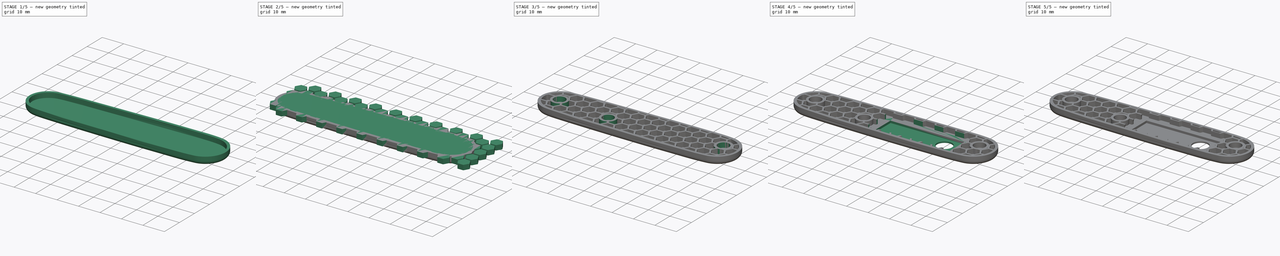
[diagram: build sequence overview — one tinted view per stage of 5, left to right]
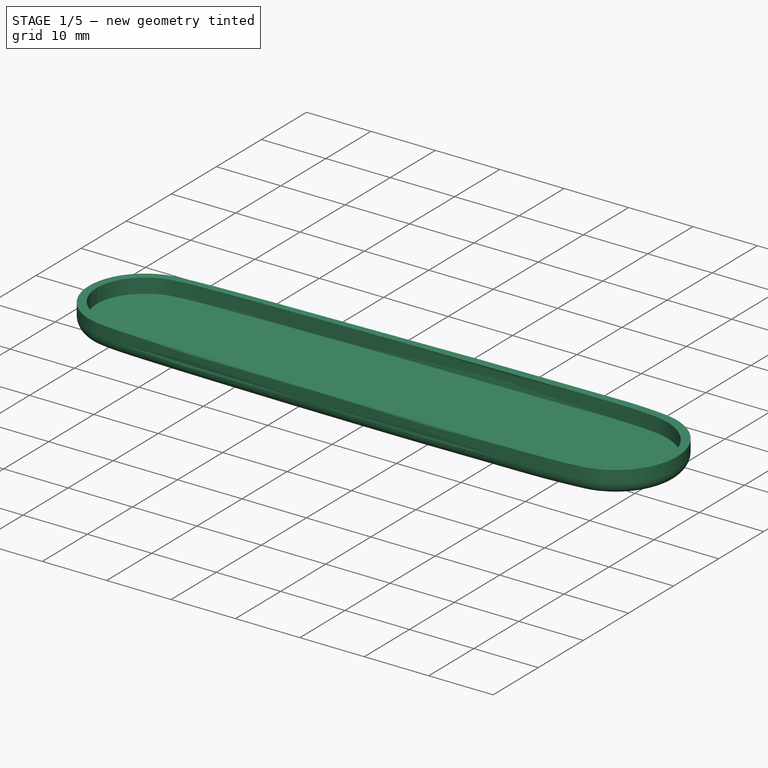
[diagram: stage 1 of 5 — iso view after this stage's code; geometry added in this stage tinted green]
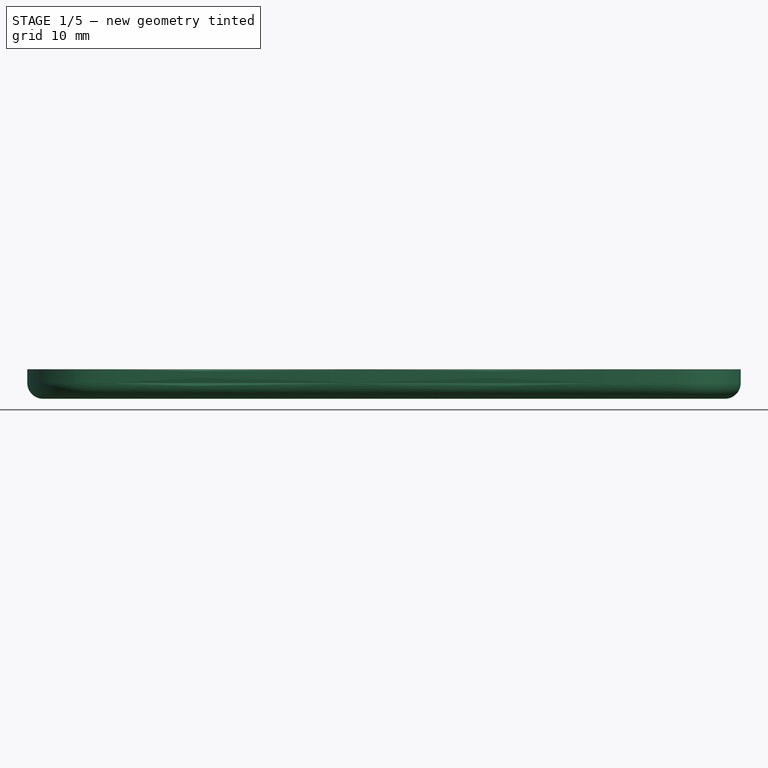
[diagram: stage 1 of 5 — front view after this stage's code; geometry added in this stage tinted green]
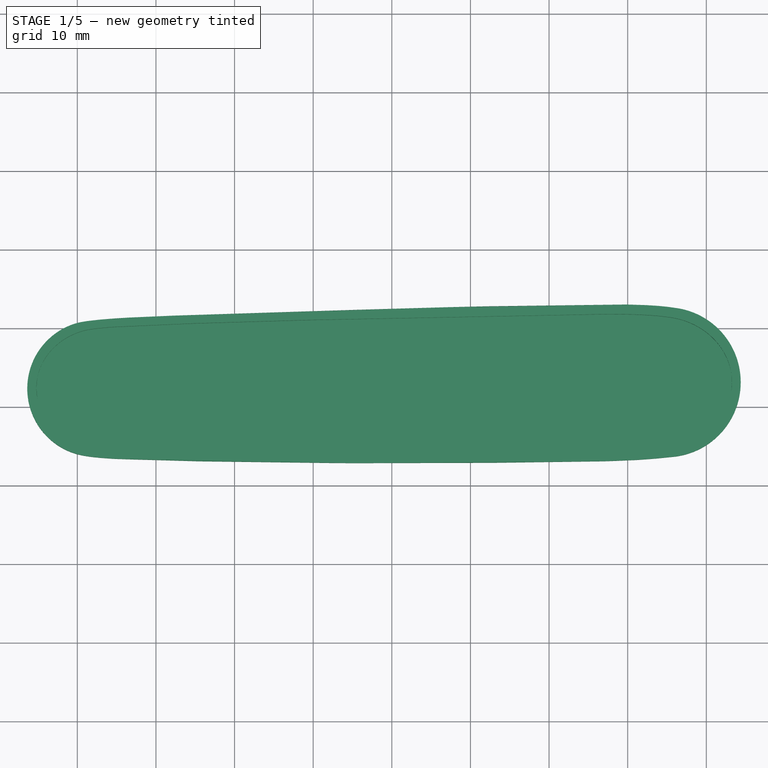
[diagram: stage 1 of 5 — top view after this stage's code; geometry added in this stage tinted green]
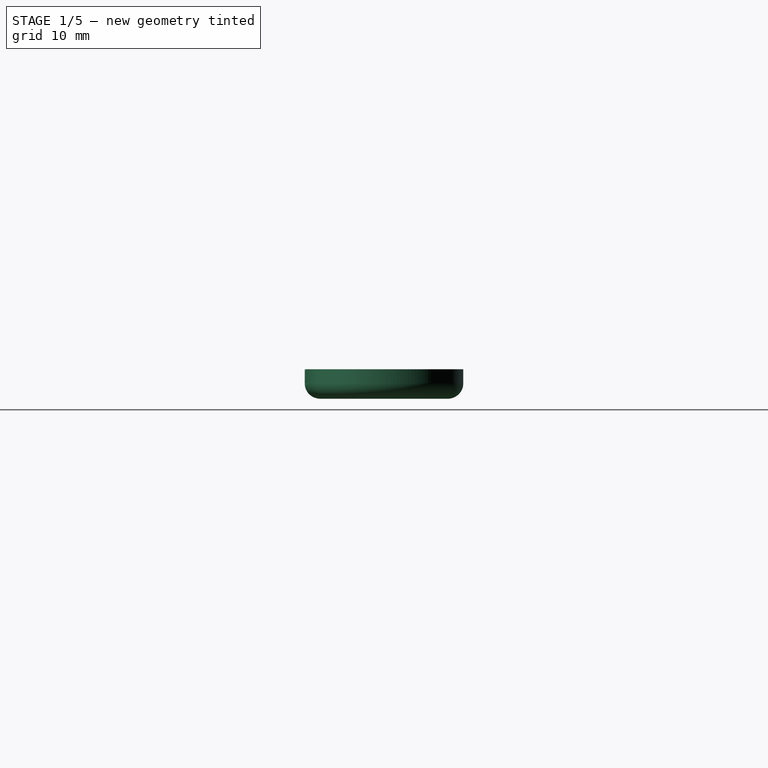
[diagram: stage 1 of 5 — right view after this stage's code; geometry added in this stage tinted green]
FCSTD DOCUMENT  (FreeCAD 0.19R24276 (Git))
Label: pocket_knife_scales
License: All rights reserved
LicenseURL: http://en.wikipedia.org/wiki/All_rights_reserved
objects: Sketcher::SketchObject×17, App::Part×16, Part::Feature×15, PartDesign::Pad×7, PartDesign::Body×6, Part::Part2DObjectPython×4, PartDesign::Pocket×4, PartDesign::FeaturePython×1, Part::Cut×1, PartDesign::Fillet×1, Part::MultiFuse×1, PartDesign::Chamfer×1
note: 71 computed .brp shape members not serialized (recipe doc carries the construction recipe); baked Part::Feature solids carry a one-line shape summary decoded from their .brp

FEATURE [Sketcher::SketchObject] Sketch  label="base"
  FullyConstrained = false
  MapMode = 5
  Support = -> [XY_Plane002]
  sketch-geometry (42):
    g0: ArcOfCircle CenterX=-37.7037 CenterY=-7.7 CenterZ=0 NormalX=0 NormalY=0 NormalZ=1 AngleXU=0 Radius=8.66 StartAngle=1.83917 EndAngle=4.44401
    g1: ArcOfCircle CenterX=34.847 CenterY=-6.89 CenterZ=0 NormalX=0 NormalY=0 NormalZ=1 AngleXU=0 Radius=9.53 StartAngle=4.83367 EndAngle=7.7327
    g2-g11: Circle x10 (B-spline internal-alignment scaffolding for g12; pole/knot coordinates omitted)
    g12: BSplineCurve PolesCount=10 KnotsCount=8 Degree=3 IsPeriodic=0
    g13-g20: GeomPoint x8 (B-spline internal-alignment scaffolding for g12; pole/knot coordinates omitted)
    g21-g31: Circle x11 (B-spline internal-alignment scaffolding for g32; pole/knot coordinates omitted)
    g32: BSplineCurve PolesCount=11 KnotsCount=9 Degree=3 IsPeriodic=0
    g33-g41: GeomPoint x9 (B-spline internal-alignment scaffolding for g32; pole/knot coordinates omitted)
  constraints (22):
    c: DistanceX(g0,g-1) = 40
    c: Vertical(g0,g0)
    c: DistanceY(g-1,g0) = 0.65
    c: DistanceY(g0,g0) = 16.7
    c: Radius(g0) = 8.66
    c: DistanceY(g1,g1) = 18.92
    c: DistanceX(g-1,g1) = 36
    c: Vertical(g1,g1)
    c: DistanceY(g-1,g1) = 2.57
    c: Coincident(g12,g1)
    c: Weight(g2) = 1
    c: Equal(g2, g3-g11) x9
    c: Coincident(g12,g0)
    c: InternalAlignment(g2-g11 -> g12) x10
    c: InternalAlignment(g13-g20 -> g12) x8
    c: Coincident(g32,g0)
    c: Weight(g21) = 1
    c: Equal(g21, g22-g31) x10
    c: Coincident(g32,g1)
    c: InternalAlignment(g21-g31 -> g32) x11
    c: InternalAlignment(g33-g41 -> g32) x9
    c: Radius(g1) = 9.53
FEATURE [PartDesign::Pad] Pad
  Direction = (1,1,1)
  Length = 3.75
  Length2 = 100
  Profile = -> Sketch
  Reversed = true
  Type = 0
FEATURE [PartDesign::Body] Body003  label="base_inner"
  Group = -> [Sketch011,Sketch012,Sketch013,Pad002]
  Origin = -> Origin020
  Tip = -> Pad002
FEATURE [PartDesign::Pocket] Pocket
  BaseFeature = -> Pad
  Length = 2.25
  Length2 = 100
  Profile = -> Sketch009
  Type = 0
FEATURE [PartDesign::Fillet] Fillet
  Base = -> Pocket [Face5]
  BaseFeature = -> Pocket
  Radius = 2
  SupportTransform = false
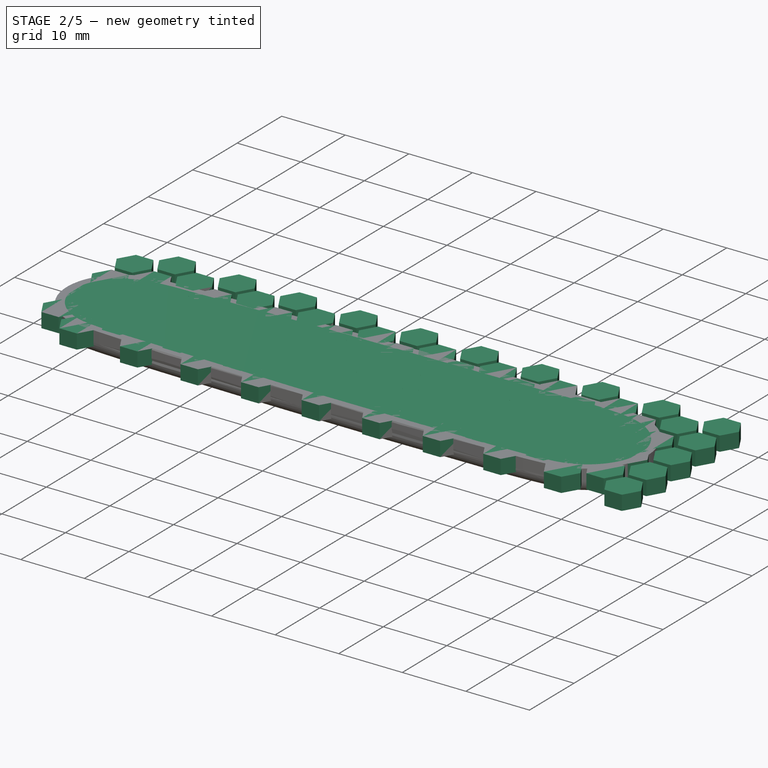
[diagram: stage 2 of 5 — iso view after this stage's code; geometry added in this stage tinted green]
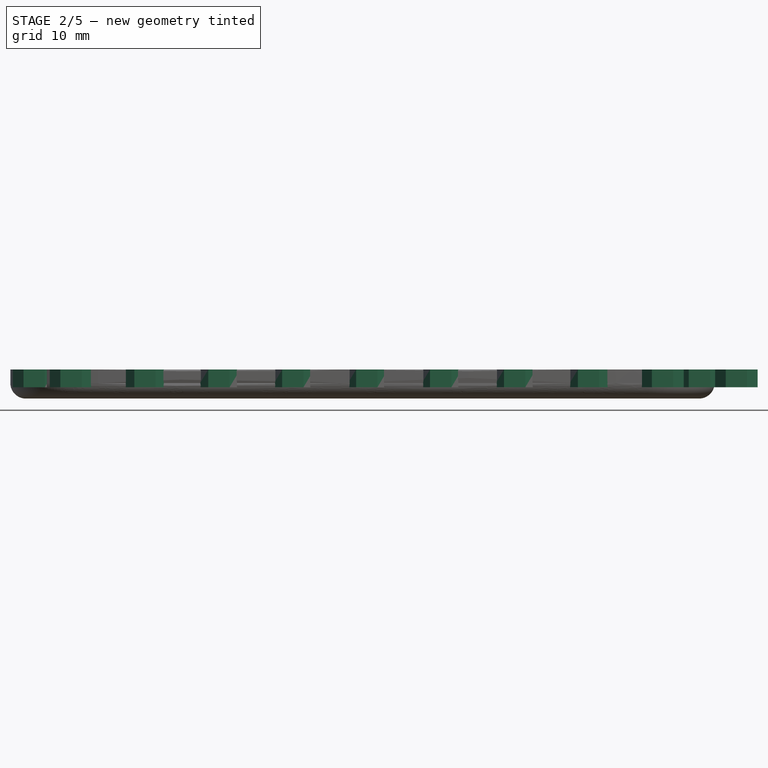
[diagram: stage 2 of 5 — front view after this stage's code; geometry added in this stage tinted green]
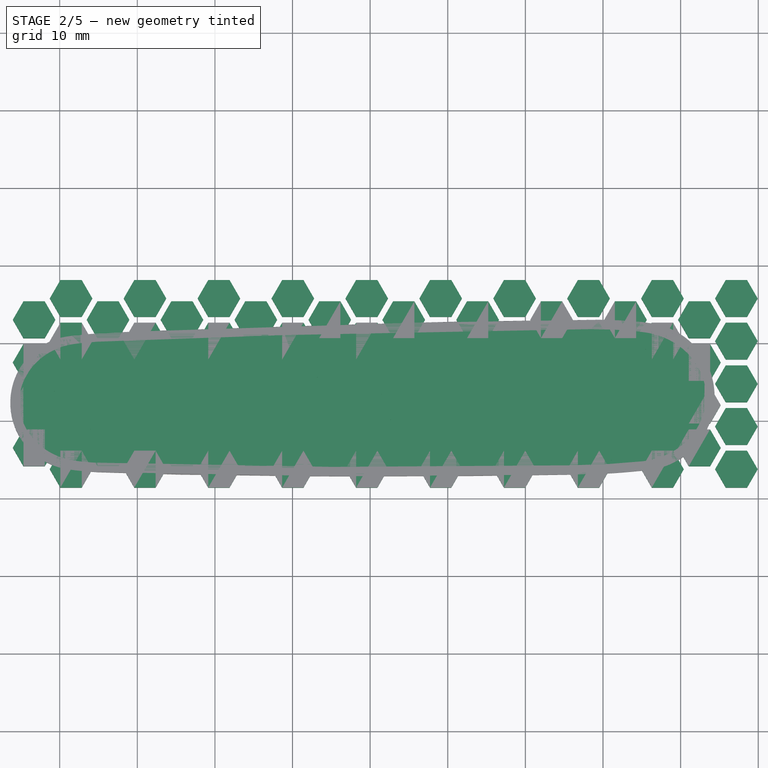
[diagram: stage 2 of 5 — top view after this stage's code; geometry added in this stage tinted green]
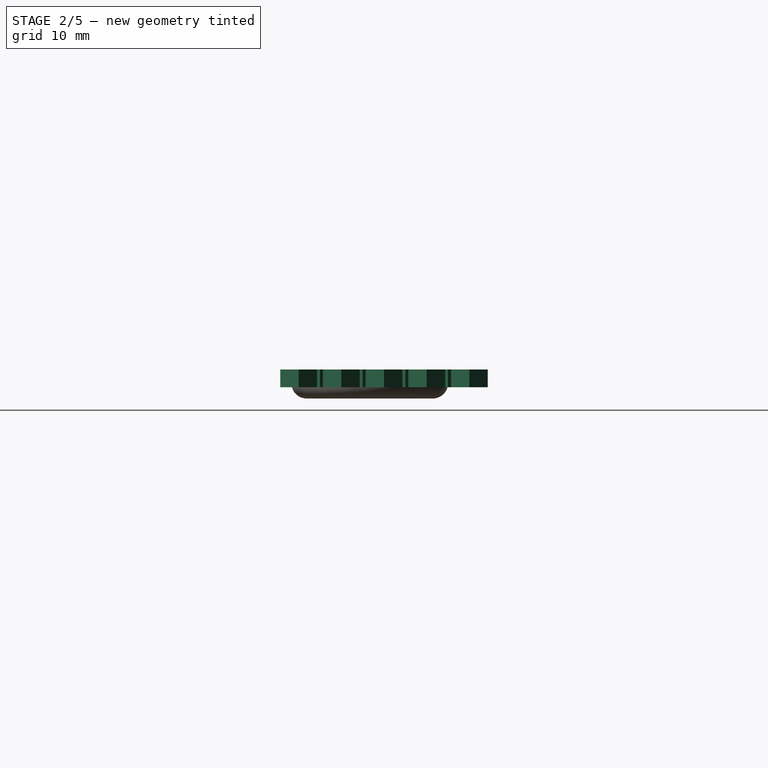
[diagram: stage 2 of 5 — right view after this stage's code; geometry added in this stage tinted green]
FEATURE [Sketcher::SketchObject] Sketch001  label="base_copy"
  FullyConstrained = false
  MapMode = 5
  Support = -> [XY_Plane019]
  sketch-geometry (42):
    g0: ArcOfCircle CenterX=-37.7037 CenterY=-7.7 CenterZ=0 NormalX=0 NormalY=0 NormalZ=1 AngleXU=0 Radius=8.66 StartAngle=1.83917 EndAngle=4.44401
    g1: ArcOfCircle CenterX=34.847 CenterY=-6.89 CenterZ=0 NormalX=0 NormalY=0 NormalZ=1 AngleXU=0 Radius=9.53 StartAngle=4.83367 EndAngle=7.7327
    g2-g11: Circle x10 (B-spline internal-alignment scaffolding for g12; pole/knot coordinates omitted)
    g12: BSplineCurve PolesCount=10 KnotsCount=8 Degree=3 IsPeriodic=0
    g13-g20: GeomPoint x8 (B-spline internal-alignment scaffolding for g12; pole/knot coordinates omitted)
    g21-g31: Circle x11 (B-spline internal-alignment scaffolding for g32; pole/knot coordinates omitted)
    g32: BSplineCurve PolesCount=11 KnotsCount=9 Degree=3 IsPeriodic=0
    g33-g41: GeomPoint x9 (B-spline internal-alignment scaffolding for g32; pole/knot coordinates omitted)
  constraints (22):
    c: DistanceX(g0,g-1) = 40
    c: Vertical(g0,g0)
    c: DistanceY(g-1,g0) = 0.65
    c: DistanceY(g0,g0) = 16.7
    c: Radius(g0) = 8.66
    c: DistanceY(g1,g1) = 18.92
    c: DistanceX(g-1,g1) = 36
    c: Vertical(g1,g1)
    c: DistanceY(g-1,g1) = 2.57
    c: Coincident(g12,g1)
    c: Weight(g2) = 1
    c: Equal(g2, g3-g11) x9
    c: Coincident(g12,g0)
    c: InternalAlignment(g2-g11 -> g12) x10
    c: InternalAlignment(g13-g20 -> g12) x8
    c: Coincident(g32,g0)
    c: Weight(g21) = 1
    c: Equal(g21, g22-g31) x10
    c: Coincident(g32,g1)
    c: InternalAlignment(g21-g31 -> g32) x11
    c: InternalAlignment(g33-g41 -> g32) x9
    c: Radius(g1) = 9.53
FEATURE [Sketcher::SketchObject] Sketch002  label="mounting_holes_s"
  FullyConstrained = false
  MapMode = 5
  Support = -> [XY_Plane022]
  sketch-geometry (6):
    g0: Circle CenterX=-38.6185 CenterY=-6.78904 CenterZ=0 NormalX=0 NormalY=0 NormalZ=1 AngleXU=0 Radius=2.7
    g1: Circle CenterX=-14.0609 CenterY=-9.54984 CenterZ=0 NormalX=0 NormalY=0 NormalZ=1 AngleXU=0 Radius=2.6
    g2: Circle CenterX=36.4096 CenterY=-4.90027 CenterZ=0 NormalX=0 NormalY=0 NormalZ=1 AngleXU=0 Radius=2.75
    g3: Circle CenterX=36.4096 CenterY=-4.90027 CenterZ=0 NormalX=0 NormalY=0 NormalZ=1 AngleXU=0 Radius=3.75
    g4: Circle CenterX=-14.0609 CenterY=-9.54984 CenterZ=0 NormalX=0 NormalY=0 NormalZ=1 AngleXU=0 Radius=3.6
    g5: Circle CenterX=-38.6185 CenterY=-6.78904 CenterZ=0 NormalX=0 NormalY=0 NormalZ=1 AngleXU=0 Radius=3.7
  constraints (9):
    c: Radius(g0) = 2.7
    c: Radius(g1) = 2.6
    c: Radius(g2) = 2.75
    c: Coincident(g3,g2)
    c: Radius(g3) = 3.75
    c: Coincident(g4,g1)
    c: Radius(g4) = 3.6
    c: Coincident(g5,g0)
    c: Radius(g5) = 3.7
FEATURE [Part::Part2DObjectPython] Clone2D  label="scaled_sketch"  # Draft 2D object (typed FeaturePython)
  Fuse = false
  Objects = -> [Sketch001]
  Placement = pos=(-0.0012919,-0.853768,0) rot=(0,0,1;0rad)
  Scale = (0.975,0.88,1)
FEATURE [Sketcher::SketchObject] Sketch005  label="hex"
  FullyConstrained = true
  MapMode = 5
  Support = -> [XY_Plane018]
  sketch-geometry (7):
    g0: LineSegment StartX=1.37121 StartY=2.375 StartZ=0 EndX=-1.37121 EndY=2.375 EndZ=0
    g1: LineSegment StartX=-1.37121 StartY=2.375 StartZ=0 EndX=-2.74241 EndY=0 EndZ=0
    g2: LineSegment StartX=-2.74241 StartY=0 StartZ=0 EndX=-1.37121 EndY=-2.375 EndZ=0
    g3: LineSegment StartX=-1.37121 StartY=-2.375 StartZ=0 EndX=1.37121 EndY=-2.375 EndZ=0
    g4: LineSegment StartX=1.37121 StartY=-2.375 StartZ=0 EndX=2.74241 EndY=0 EndZ=0
    g5: LineSegment StartX=2.74241 StartY=0 StartZ=0 EndX=1.37121 EndY=2.375 EndZ=0
    g6: Circle CenterX=0 CenterY=0 CenterZ=0 NormalX=0 NormalY=0 NormalZ=1 AngleXU=0 Radius=2.74241
  constraints (16):
    c: Coincident(g0,g1)
    c: Coincident(g1,g2)
    c: Coincident(g2,g3)
    c: Coincident(g3,g4)
    c: Coincident(g4,g5)
    c: Coincident(g5,g0)
    c: Equal(g0, g1-g5) x5
    c: PointOnObject(g0,g6)
    c: PointOnObject(g1,g6)
    c: PointOnObject(g2,g6)
    c: PointOnObject(g3,g6)
    c: PointOnObject(g4,g6)
    c: PointOnObject(g5,g6)
    c: Horizontal(g0)
    c: Coincident(g6,g-1)
    c: DistanceY(g3,g0) = 4.75
FEATURE [PartDesign::Pad] Pad001
  Direction = (1,1,1)
  Length = 2.3
  Length2 = 100
  Profile = -> Sketch005
  Reversed = true
  Type = 0
FEATURE [Part::Part2DObjectPython] Placment  label="Custom"  # Draft 2D object (typed FeaturePython)
  AttacherType = Attacher::AttachEngine3D
  ExposePlacement = true
  FlipZ = false
  Invert = false
  MarkerShape = 1
  MarkerSize = 0.5
  NumElements = 1
  Placement = pos=(0,0,0) rot=(0.57735,-0.57735,-0.57735;4.18879rad)
  PlacementChoice = 0
  Type = lattice2Placement.LatticePlacement
  isLattice = 1
FEATURE [PartDesign::Body] Body001  label="hexagon"
  Group = -> [Sketch005,Pad001,Placment]
  Origin = -> Origin018
  Tip = -> Pad001
FEATURE [Sketcher::SketchObject] Sketch008
  FullyConstrained = true
  MapMode = 5
  Support = -> [XY_Plane019]
  sketch-geometry (178):
    g0: LineSegment StartX=-43.3 StartY=3 StartZ=0 EndX=-43.3 EndY=1 EndZ=0
    g1: LineSegment StartX=-38.5375 StartY=5.75 StartZ=0 EndX=-38.5375 EndY=3.75 EndZ=0
    g2: LineSegment StartX=-33.775 StartY=3 StartZ=0 EndX=-33.775 EndY=1 EndZ=0
    g3: LineSegment StartX=-43.3 StartY=3 StartZ=0 EndX=-33.775 EndY=3 EndZ=0
    g4: LineSegment StartX=-24.25 StartY=3 StartZ=0 EndX=-24.25 EndY=1 EndZ=0
    g5: LineSegment StartX=-33.775 StartY=3 StartZ=0 EndX=-24.25 EndY=3 EndZ=0
    g6: LineSegment StartX=-14.725 StartY=3 StartZ=0 EndX=-14.725 EndY=1 EndZ=0
    g7: LineSegment StartX=-24.25 StartY=3 StartZ=0 EndX=-14.725 EndY=3 EndZ=0
    g8: LineSegment StartX=-5.2 StartY=3 StartZ=0 EndX=-5.2 EndY=1 EndZ=0
    g9: LineSegment StartX=-14.725 StartY=3 StartZ=0 EndX=-5.2 EndY=3 EndZ=0
    g10: LineSegment StartX=4.325 StartY=3 StartZ=0 EndX=4.325 EndY=1 EndZ=0
    g11: LineSegment StartX=-5.2 StartY=3 StartZ=0 EndX=4.325 EndY=3 EndZ=0
    g12: LineSegment StartX=13.85 StartY=3 StartZ=0 EndX=13.85 EndY=1 EndZ=0
    g13: LineSegment StartX=4.325 StartY=3 StartZ=0 EndX=13.85 EndY=3 EndZ=0
    g14: LineSegment StartX=23.375 StartY=3 StartZ=0 EndX=23.375 EndY=1 EndZ=0
    g15: LineSegment StartX=13.85 StartY=3 StartZ=0 EndX=23.375 EndY=3 EndZ=0
    g16: LineSegment StartX=32.9 StartY=3 StartZ=0 EndX=32.9 EndY=1 EndZ=0
    g17: LineSegment StartX=23.375 StartY=3 StartZ=0 EndX=32.9 EndY=3 EndZ=0
    g18: LineSegment StartX=42.425 StartY=3 StartZ=0 EndX=42.425 EndY=1 EndZ=0
    g19: LineSegment StartX=32.9 StartY=3 StartZ=0 EndX=42.425 EndY=3 EndZ=0
    g20: LineSegment StartX=-43.3 StartY=-2.5 StartZ=0 EndX=-43.3 EndY=-4.5 EndZ=0
    g21: LineSegment StartX=-43.3 StartY=3 StartZ=0 EndX=-43.3 EndY=-2.5 EndZ=0
    g22: LineSegment StartX=-33.775 StartY=-2.5 StartZ=0 EndX=-33.775 EndY=-4.5 EndZ=0
    g23: LineSegment StartX=-43.3 StartY=-2.5 StartZ=0 EndX=-33.775 EndY=-2.5 EndZ=0
    g24: LineSegment StartX=-24.25 StartY=-2.5 StartZ=0 EndX=-24.25 EndY=-4.5 EndZ=0
    g25: LineSegment StartX=-33.775 StartY=-2.5 StartZ=0 EndX=-24.25 EndY=-2.5 EndZ=0
    g26: LineSegment StartX=-14.725 StartY=-2.5 StartZ=0 EndX=-14.725 EndY=-4.5 EndZ=0
    g27: LineSegment StartX=-24.25 StartY=-2.5 StartZ=0 EndX=-14.725 EndY=-2.5 EndZ=0
    g28: LineSegment StartX=-5.2 StartY=-2.5 StartZ=0 EndX=-5.2 EndY=-4.5 EndZ=0
    g29: LineSegment StartX=-14.725 StartY=-2.5 StartZ=0 EndX=-5.2 EndY=-2.5 EndZ=0
    g30: LineSegment StartX=4.325 StartY=-2.5 StartZ=0 EndX=4.325 EndY=-4.5 EndZ=0
    g31: LineSegment StartX=-5.2 StartY=-2.5 StartZ=0 EndX=4.325 EndY=-2.5 EndZ=0
    g32: LineSegment StartX=13.85 StartY=-2.5 StartZ=0 EndX=13.85 EndY=-4.5 EndZ=0
    g33: LineSegment StartX=4.325 StartY=-2.5 StartZ=0 EndX=13.85 EndY=-2.5 EndZ=0
    g34: LineSegment StartX=23.375 StartY=-2.5 StartZ=0 EndX=23.375 EndY=-4.5 EndZ=0
    g35: LineSegment StartX=13.85 StartY=-2.5 StartZ=0 EndX=23.375 EndY=-2.5 EndZ=0
    g36: LineSegment StartX=32.9 StartY=-2.5 StartZ=0 EndX=32.9 EndY=-4.5 EndZ=0
    g37: LineSegment StartX=23.375 StartY=-2.5 StartZ=0 EndX=32.9 EndY=-2.5 EndZ=0
    g38: LineSegment StartX=42.425 StartY=-2.5 StartZ=0 EndX=42.425 EndY=-4.5 EndZ=0
    g39: LineSegment StartX=32.9 StartY=-2.5 StartZ=0 EndX=42.425 EndY=-2.5 EndZ=0
    g40: LineSegment StartX=-43.3 StartY=-8 StartZ=0 EndX=-43.3 EndY=-10 EndZ=0
    g41: LineSegment StartX=-43.3 StartY=-2.5 StartZ=0 EndX=-43.3 EndY=-8 EndZ=0
    g42: LineSegment StartX=-33.775 StartY=-8 StartZ=0 EndX=-33.775 EndY=-10 EndZ=0
    g43: LineSegment StartX=-43.3 StartY=-8 StartZ=0 EndX=-33.775 EndY=-8 EndZ=0
    g44: LineSegment StartX=-24.25 StartY=-8 StartZ=0 EndX=-24.25 EndY=-10 EndZ=0
    g45: LineSegment StartX=-33.775 StartY=-8 StartZ=0 EndX=-24.25 EndY=-8 EndZ=0
    g46: LineSegment StartX=-14.725 StartY=-8 StartZ=0 EndX=-14.725 EndY=-10 EndZ=0
    g47: LineSegment StartX=-24.25 StartY=-8 StartZ=0 EndX=-14.725 EndY=-8 EndZ=0
    g48: LineSegment StartX=-5.2 StartY=-8 StartZ=0 EndX=-5.2 EndY=-10 EndZ=0
    g49: LineSegment StartX=-14.725 StartY=-8 StartZ=0 EndX=-5.2 EndY=-8 EndZ=0
    g50: LineSegment StartX=4.325 StartY=-8 StartZ=0 EndX=4.325 EndY=-10 EndZ=0
    g51: LineSegment StartX=-5.2 StartY=-8 StartZ=0 EndX=4.325 EndY=-8 EndZ=0
    g52: LineSegment StartX=13.85 StartY=-8 StartZ=0 EndX=13.85 EndY=-10 EndZ=0
    g53: LineSegment StartX=4.325 StartY=-8 StartZ=0 EndX=13.85 EndY=-8 EndZ=0
    g54: LineSegment StartX=23.375 StartY=-8 StartZ=0 EndX=23.375 EndY=-10 EndZ=0
    g55: LineSegment StartX=13.85 StartY=-8 StartZ=0 EndX=23.375 EndY=-8 EndZ=0
    g56: LineSegment StartX=32.9 StartY=-8 StartZ=0 EndX=32.9 EndY=-10 EndZ=0
    g57: LineSegment StartX=23.375 StartY=-8 StartZ=0 EndX=32.9 EndY=-8 EndZ=0
    g58: LineSegment StartX=42.425 StartY=-8 StartZ=0 EndX=42.425 EndY=-10 EndZ=0
    g59: LineSegment StartX=32.9 StartY=-8 StartZ=0 EndX=42.425 EndY=-8 EndZ=0
    g60: LineSegment StartX=-43.3 StartY=-13.5 StartZ=0 EndX=-43.3 EndY=-15.5 EndZ=0
    g61: LineSegment StartX=-43.3 StartY=-8 StartZ=0 EndX=-43.3 EndY=-13.5 EndZ=0
    g62: LineSegment StartX=-33.775 StartY=-13.5 StartZ=0 EndX=-33.775 EndY=-15.5 EndZ=0
    g63: LineSegment StartX=-43.3 StartY=-13.5 StartZ=0 EndX=-33.775 EndY=-13.5 EndZ=0
    g64: LineSegment StartX=-24.25 StartY=-13.5 StartZ=0 EndX=-24.25 EndY=-15.5 EndZ=0
    g65: LineSegment StartX=-33.775 StartY=-13.5 StartZ=0 EndX=-24.25 EndY=-13.5 EndZ=0
    g66: LineSegment StartX=-14.725 StartY=-13.5 StartZ=0 EndX=-14.725 EndY=-15.5 EndZ=0
    g67: LineSegment StartX=-24.25 StartY=-13.5 StartZ=0 EndX=-14.725 EndY=-13.5 EndZ=0
    g68: LineSegment StartX=-5.2 StartY=-13.5 StartZ=0 EndX=-5.2 EndY=-15.5 EndZ=0
    g69: LineSegment StartX=-14.725 StartY=-13.5 StartZ=0 EndX=-5.2 EndY=-13.5 EndZ=0
    g70: LineSegment StartX=4.325 StartY=-13.5 StartZ=0 EndX=4.325 EndY=-15.5 EndZ=0
    g71: LineSegment StartX=-5.2 StartY=-13.5 StartZ=0 EndX=4.325 EndY=-13.5 EndZ=0
    g72: LineSegment StartX=13.85 StartY=-13.5 StartZ=0 EndX=13.85 EndY=-15.5 EndZ=0
    g73: LineSegment StartX=4.325 StartY=-13.5 StartZ=0 EndX=13.85 EndY=-13.5 EndZ=0
    g74: LineSegment StartX=23.375 StartY=-13.5 StartZ=0 EndX=23.375 EndY=-15.5 EndZ=0
    g75: LineSegment StartX=13.85 StartY=-13.5 StartZ=0 EndX=23.375 EndY=-13.5 EndZ=0
    g76: LineSegment StartX=32.9 StartY=-13.5 StartZ=0 EndX=32.9 EndY=-15.5 EndZ=0
    g77: LineSegment StartX=23.375 StartY=-13.5 StartZ=0 EndX=32.9 EndY=-13.5 EndZ=0
    g78: LineSegment StartX=42.425 StartY=-13.5 StartZ=0 EndX=42.425 EndY=-15.5 EndZ=0
    g79: LineSegment StartX=32.9 StartY=-13.5 StartZ=0 EndX=42.425 EndY=-13.5 EndZ=0
    g80: LineSegment StartX=-29.0125 StartY=5.75 StartZ=0 EndX=-29.0125 EndY=3.75 EndZ=0
    g81: LineSegment StartX=-38.5375 StartY=5.75 StartZ=0 EndX=-29.0125 EndY=5.75 EndZ=0
    g82: LineSegment StartX=-19.4875 StartY=5.75 StartZ=0 EndX=-19.4875 EndY=3.75 EndZ=0
    g83: LineSegment StartX=-29.0125 StartY=5.75 StartZ=0 EndX=-19.4875 EndY=5.75 EndZ=0
    g84: LineSegment StartX=-9.9625 StartY=5.75 StartZ=0 EndX=-9.9625 EndY=3.75 EndZ=0
    g85: LineSegment StartX=-19.4875 StartY=5.75 StartZ=0 EndX=-9.9625 EndY=5.75 EndZ=0
    g86: LineSegment StartX=-0.4375 StartY=5.75 StartZ=0 EndX=-0.4375 EndY=3.75 EndZ=0
    g87: LineSegment StartX=-9.9625 StartY=5.75 StartZ=0 EndX=-0.4375 EndY=5.75 EndZ=0
    g88: LineSegment StartX=9.0875 StartY=5.75 StartZ=0 EndX=9.0875 EndY=3.75 EndZ=0
    g89: LineSegment StartX=-0.4375 StartY=5.75 StartZ=0 EndX=9.0875 EndY=5.75 EndZ=0
    g90: LineSegment StartX=18.6125 StartY=5.75 StartZ=0 EndX=18.6125 EndY=3.75 EndZ=0
    g91: LineSegment StartX=9.0875 StartY=5.75 StartZ=0 EndX=18.6125 EndY=5.75 EndZ=0
    g92: LineSegment StartX=28.1375 StartY=5.75 StartZ=0 EndX=28.1375 EndY=3.75 EndZ=0
    g93: LineSegment StartX=18.6125 StartY=5.75 StartZ=0 EndX=28.1375 EndY=5.75 EndZ=0
    g94: LineSegment StartX=37.6625 StartY=5.75 StartZ=0 EndX=37.6625 EndY=3.75 EndZ=0
    g95: LineSegment StartX=28.1375 StartY=5.75 StartZ=0 EndX=37.6625 EndY=5.75 EndZ=0
    g96: LineSegment StartX=47.1875 StartY=5.75 StartZ=0 EndX=47.1875 EndY=3.75 EndZ=0
    g97: LineSegment StartX=37.6625 StartY=5.75 StartZ=0 EndX=47.1875 EndY=5.75 EndZ=0
    g98: LineSegment StartX=-38.5375 StartY=0.25 StartZ=0 EndX=-38.5375 EndY=-1.75 EndZ=0
    g99: LineSegment StartX=-38.5375 StartY=5.75 StartZ=0 EndX=-38.5375 EndY=0.25 EndZ=0
    g100: LineSegment StartX=-29.0125 StartY=0.25 StartZ=0 EndX=-29.0125 EndY=-1.75 EndZ=0
    g101: LineSegment StartX=-38.5375 StartY=0.25 StartZ=0 EndX=-29.0125 EndY=0.25 EndZ=0
    g102: LineSegment StartX=-19.4875 StartY=0.25 StartZ=0 EndX=-19.4875 EndY=-1.75 EndZ=0
    g103: LineSegment StartX=-29.0125 StartY=0.25 StartZ=0 EndX=-19.4875 EndY=0.25 EndZ=0
    g104: LineSegment StartX=-9.9625 StartY=0.25 StartZ=0 EndX=-9.9625 EndY=-1.75 EndZ=0
    g105: LineSegment StartX=-19.4875 StartY=0.25 StartZ=0 EndX=-9.9625 EndY=0.25 EndZ=0
    g106: LineSegment StartX=-0.4375 StartY=0.25 StartZ=0 EndX=-0.4375 EndY=-1.75 EndZ=0
    g107: LineSegment StartX=-9.9625 StartY=0.25 StartZ=0 EndX=-0.4375 EndY=0.25 EndZ=0
    g108: LineSegment StartX=9.0875 StartY=0.25 StartZ=0 EndX=9.0875 EndY=-1.75 EndZ=0
    g109: LineSegment StartX=-0.4375 StartY=0.25 StartZ=0 EndX=9.0875 EndY=0.25 EndZ=0
    g110: LineSegment StartX=18.6125 StartY=0.25 StartZ=0 EndX=18.6125 EndY=-1.75 EndZ=0
    g111: LineSegment StartX=9.0875 StartY=0.25 StartZ=0 EndX=18.6125 EndY=0.25 EndZ=0
    g112: LineSegment StartX=28.1375 StartY=0.25 StartZ=0 EndX=28.1375 EndY=-1.75 EndZ=0
    g113: LineSegment StartX=18.6125 StartY=0.25 StartZ=0 EndX=28.1375 EndY=0.25 EndZ=0
    g114: LineSegment StartX=37.6625 StartY=0.25 StartZ=0 EndX=37.6625 EndY=-1.75 EndZ=0
    g115: LineSegment StartX=28.1375 StartY=0.25 StartZ=0 EndX=37.6625 EndY=0.25 EndZ=0
    g116: LineSegment StartX=47.1875 StartY=0.25 StartZ=0 EndX=47.1875 EndY=-1.75 EndZ=0
    g117: LineSegment StartX=37.6625 StartY=0.25 StartZ=0 EndX=47.1875 EndY=0.25 EndZ=0
    g118: LineSegment StartX=-38.5375 StartY=-5.25 StartZ=0 EndX=-38.5375 EndY=-7.25 EndZ=0
    g119: LineSegment StartX=-38.5375 StartY=0.25 StartZ=0 EndX=-38.5375 EndY=-5.25 EndZ=0
    g120: LineSegment StartX=-29.0125 StartY=-5.25 StartZ=0 EndX=-29.0125 EndY=-7.25 EndZ=0
    g121: LineSegment StartX=-38.5375 StartY=-5.25 StartZ=0 EndX=-29.0125 EndY=-5.25 EndZ=0
    g122: LineSegment StartX=-19.4875 StartY=-5.25 StartZ=0 EndX=-19.4875 EndY=-7.25 EndZ=0
    g123: LineSegment StartX=-29.0125 StartY=-5.25 StartZ=0 EndX=-19.4875 EndY=-5.25 EndZ=0
    g124: LineSegment StartX=-9.9625 StartY=-5.25 StartZ=0 EndX=-9.9625 EndY=-7.25 EndZ=0
    g125: LineSegment StartX=-19.4875 StartY=-5.25 StartZ=0 EndX=-9.9625 EndY=-5.25 EndZ=0
    g126: LineSegment StartX=-0.4375 StartY=-5.25 StartZ=0 EndX=-0.4375 EndY=-7.25 EndZ=0
    g127: LineSegment StartX=-9.9625 StartY=-5.25 StartZ=0 EndX=-0.4375 EndY=-5.25 EndZ=0
    g128: LineSegment StartX=9.0875 StartY=-5.25 StartZ=0 EndX=9.0875 EndY=-7.25 EndZ=0
    g129: LineSegment StartX=-0.4375 StartY=-5.25 StartZ=0 EndX=9.0875 EndY=-5.25 EndZ=0
    g130: LineSegment StartX=18.6125 StartY=-5.25 StartZ=0 EndX=18.6125 EndY=-7.25 EndZ=0
    g131: LineSegment StartX=9.0875 StartY=-5.25 StartZ=0 EndX=18.6125 EndY=-5.25 EndZ=0
    g132: LineSegment StartX=28.1375 StartY=-5.25 StartZ=0 EndX=28.1375 EndY=-7.25 EndZ=0
    g133: LineSegment StartX=18.6125 StartY=-5.25 StartZ=0 EndX=28.1375 EndY=-5.25 EndZ=0
    g134: LineSegment StartX=37.6625 StartY=-5.25 StartZ=0 EndX=37.6625 EndY=-7.25 EndZ=0
    g135: LineSegment StartX=28.1375 StartY=-5.25 StartZ=0 EndX=37.6625 EndY=-5.25 EndZ=0
    g136: LineSegment StartX=47.1875 StartY=-5.25 StartZ=0 EndX=47.1875 EndY=-7.25 EndZ=0
    g137: LineSegment StartX=37.6625 StartY=-5.25 StartZ=0 EndX=47.1875 EndY=-5.25 EndZ=0
    g138: LineSegment StartX=-38.5375 StartY=-10.75 StartZ=0 EndX=-38.5375 EndY=-12.75 EndZ=0
    g139: LineSegment StartX=-38.5375 StartY=-5.25 StartZ=0 EndX=-38.5375 EndY=-10.75 EndZ=0
    g140: LineSegment StartX=-29.0125 StartY=-10.75 StartZ=0 EndX=-29.0125 EndY=-12.75 EndZ=0
    g141: LineSegment StartX=-38.5375 StartY=-10.75 StartZ=0 EndX=-29.0125 EndY=-10.75 EndZ=0
    g142: LineSegment StartX=-19.4875 StartY=-10.75 StartZ=0 EndX=-19.4875 EndY=-12.75 EndZ=0
    g143: LineSegment StartX=-29.0125 StartY=-10.75 StartZ=0 EndX=-19.4875 EndY=-10.75 EndZ=0
    g144: LineSegment StartX=-9.9625 StartY=-10.75 StartZ=0 EndX=-9.9625 EndY=-12.75 EndZ=0
    g145: LineSegment StartX=-19.4875 StartY=-10.75 StartZ=0 EndX=-9.9625 EndY=-10.75 EndZ=0
    g146: LineSegment StartX=-0.4375 StartY=-10.75 StartZ=0 EndX=-0.4375 EndY=-12.75 EndZ=0
    g147: LineSegment StartX=-9.9625 StartY=-10.75 StartZ=0 EndX=-0.4375 EndY=-10.75 EndZ=0
    g148: LineSegment StartX=9.0875 StartY=-10.75 StartZ=0 EndX=9.0875 EndY=-12.75 EndZ=0
    g149: LineSegment StartX=-0.4375 StartY=-10.75 StartZ=0 EndX=9.0875 EndY=-10.75 EndZ=0
    g150: LineSegment StartX=18.6125 StartY=-10.75 StartZ=0 EndX=18.6125 EndY=-12.75 EndZ=0
    g151: LineSegment StartX=9.0875 StartY=-10.75 StartZ=0 EndX=18.6125 EndY=-10.75 EndZ=0
    g152: LineSegment StartX=28.1375 StartY=-10.75 StartZ=0 EndX=28.1375 EndY=-12.75 EndZ=0
    g153: LineSegment StartX=18.6125 StartY=-10.75 StartZ=0 EndX=28.1375 EndY=-10.75 EndZ=0
    g154: LineSegment StartX=37.6625 StartY=-10.75 StartZ=0 EndX=37.6625 EndY=-12.75 EndZ=0
    g155: LineSegment StartX=28.1375 StartY=-10.75 StartZ=0 EndX=37.6625 EndY=-10.75 EndZ=0
    g156: LineSegment StartX=47.1875 StartY=-10.75 StartZ=0 EndX=47.1875 EndY=-12.75 EndZ=0
    g157: LineSegment StartX=37.6625 StartY=-10.75 StartZ=0 EndX=47.1875 EndY=-10.75 EndZ=0
    g158: LineSegment StartX=-38.5375 StartY=-16.25 StartZ=0 EndX=-38.5375 EndY=-18.25 EndZ=0
    g159: LineSegment StartX=-38.5375 StartY=-10.75 StartZ=0 EndX=-38.5375 EndY=-16.25 EndZ=0
    g160: LineSegment StartX=-29.0125 StartY=-16.25 StartZ=0 EndX=-29.0125 EndY=-18.25 EndZ=0
    g161: LineSegment StartX=-38.5375 StartY=-16.25 StartZ=0 EndX=-29.0125 EndY=-16.25 EndZ=0
    g162: LineSegment StartX=-19.4875 StartY=-16.25 StartZ=0 EndX=-19.4875 EndY=-18.25 EndZ=0
    g163: LineSegment StartX=-29.0125 StartY=-16.25 StartZ=0 EndX=-19.4875 EndY=-16.25 EndZ=0
    g164: LineSegment StartX=-9.9625 StartY=-16.25 StartZ=0 EndX=-9.9625 EndY=-18.25 EndZ=0
    g165: LineSegment StartX=-19.4875 StartY=-16.25 StartZ=0 EndX=-9.9625 EndY=-16.25 EndZ=0
    g166: LineSegment StartX=-0.4375 StartY=-16.25 StartZ=0 EndX=-0.4375 EndY=-18.25 EndZ=0
    g167: LineSegment StartX=-9.9625 StartY=-16.25 StartZ=0 EndX=-0.4375 EndY=-16.25 EndZ=0
    g168: LineSegment StartX=9.0875 StartY=-16.25 StartZ=0 EndX=9.0875 EndY=-18.25 EndZ=0
    g169: LineSegment StartX=-0.4375 StartY=-16.25 StartZ=0 EndX=9.0875 EndY=-16.25 EndZ=0
    g170: LineSegment StartX=18.6125 StartY=-16.25 StartZ=0 EndX=18.6125 EndY=-18.25 EndZ=0
    g171: LineSegment StartX=9.0875 StartY=-16.25 StartZ=0 EndX=18.6125 EndY=-16.25 EndZ=0
    g172: LineSegment StartX=28.1375 StartY=-16.25 StartZ=0 EndX=28.1375 EndY=-18.25 EndZ=0
    g173: LineSegment StartX=18.6125 StartY=-16.25 StartZ=0 EndX=28.1375 EndY=-16.25 EndZ=0
    g174: LineSegment StartX=37.6625 StartY=-16.25 StartZ=0 EndX=37.6625 EndY=-18.25 EndZ=0
    g175: LineSegment StartX=28.1375 StartY=-16.25 StartZ=0 EndX=37.6625 EndY=-16.25 EndZ=0
    g176: LineSegment StartX=47.1875 StartY=-16.25 StartZ=0 EndX=47.1875 EndY=-18.25 EndZ=0
    g177: LineSegment StartX=37.6625 StartY=-16.25 StartZ=0 EndX=47.1875 EndY=-16.25 EndZ=0
  constraints (536):
    c: Vertical(g0)
    c: Distance(g0) = 2
    c: DistanceX(g0,g-1) = 43.3
    c: DistanceY(g0,g-1) = -3
    c: Vertical(g1)
    c: Distance(g1) = 2
    c: DistanceX(g0,g1) = 4.7625
    c: DistanceY(g1,g0) = -2.75
    c: Vertical(g2)
    c: Equal(g0,g2) = 2
    c: Coincident(g0,g3)
    c: Coincident(g2,g3)
    c: Distance(g3) = 9.525
    c: Angle(g3) = 0
    c: Vertical(g4)
    c: Equal(g0,g4) = 2
    c: Coincident(g2,g5)
    c: Coincident(g4,g5)
    c: Equal(g3,g5)
    c: Parallel(g5,g3)
    c: Vertical(g6)
    c: Equal(g0,g6) = 2
    c: Coincident(g4,g7)
    c: Coincident(g6,g7)
    c: Equal(g3,g7)
    c: Parallel(g7,g3)
    c: Vertical(g8)
    c: Equal(g0,g8) = 2
    c: Coincident(g6,g9)
    c: Coincident(g8,g9)
    c: Equal(g3,g9)
    c: Parallel(g9,g3)
    c: Vertical(g10)
    c: Equal(g0,g10) = 2
    c: Coincident(g8,g11)
    c: Coincident(g10,g11)
    c: Equal(g3,g11)
    c: Parallel(g11,g3)
    c: Vertical(g12)
    c: Equal(g0,g12) = 2
    c: Coincident(g10,g13)
    c: Coincident(g12,g13)
    c: Equal(g3,g13)
    c: Parallel(g13,g3)
    c: Vertical(g14)
    c: Equal(g0,g14) = 2
    c: Coincident(g12,g15)
    c: Coincident(g14,g15)
    c: Equal(g3,g15)
    c: Parallel(g15,g3)
    c: Vertical(g16)
    c: Equal(g0,g16) = 2
    c: Coincident(g14,g17)
    c: Coincident(g16,g17)
    c: Equal(g3,g17)
    c: Parallel(g17,g3)
    c: Vertical(g18)
    c: Equal(g0,g18) = 2
    c: Coincident(g16,g19)
    c: Coincident(g18,g19)
    c: Equal(g3,g19)
    c: Parallel(g19,g3)
    c: Vertical(g20)
    c: Equal(g0,g20) = 2
    c: Coincident(g0,g21)
    c: Coincident(g20,g21)
    c: Distance(g21) = 5.5
    c: Perpendicular(g21,g3)
    c: Vertical(g22)
    c: Equal(g0,g22) = 2
    c: Coincident(g20,g23)
    c: Coincident(g22,g23)
    c: Equal(g3,g23)
    c: Parallel(g23,g3)
    c: Vertical(g24)
    c: Equal(g0,g24) = 2
    c: Coincident(g22,g25)
    c: Coincident(g24,g25)
    c: Equal(g3,g25)
    c: Parallel(g25,g3)
    c: Vertical(g26)
    c: Equal(g0,g26) = 2
    c: Coincident(g24,g27)
    c: Coincident(g26,g27)
    c: Equal(g3,g27)
    c: Parallel(g27,g3)
    c: Vertical(g28)
    c: Equal(g0,g28) = 2
    c: Coincident(g26,g29)
    c: Coincident(g28,g29)
    c: Equal(g3,g29)
    c: Parallel(g29,g3)
    c: Vertical(g30)
    c: Equal(g0,g30) = 2
    c: Coincident(g28,g31)
    c: Coincident(g30,g31)
    c: Equal(g3,g31)
    c: Parallel(g31,g3)
    c: Vertical(g32)
    c: Equal(g0,g32) = 2
    c: Coincident(g30,g33)
    c: Coincident(g32,g33)
    c: Equal(g3,g33)
    c: Parallel(g33,g3)
    c: Vertical(g34)
    c: Equal(g0,g34) = 2
    c: Coincident(g32,g35)
    c: Coincident(g34,g35)
    c: Equal(g3,g35)
    c: Parallel(g35,g3)
    c: Vertical(g36)
    c: Equal(g0,g36) = 2
    c: Coincident(g34,g37)
    c: Coincident(g36,g37)
    c: Equal(g3,g37)
    c: Parallel(g37,g3)
    c: Vertical(g38)
    c: Equal(g0,g38) = 2
    c: Coincident(g36,g39)
    c: Coincident(g38,g39)
    c: Equal(g3,g39)
    c: Parallel(g39,g3)
    c: Vertical(g40)
    c: Equal(g0,g40) = 2
    c: Coincident(g20,g41)
    c: Coincident(g40,g41)
    c: Equal(g21,g41)
    c: Perpendicular(g41,g3)
    c: Vertical(g42)
    c: Equal(g0,g42) = 2
    c: Coincident(g40,g43)
    c: Coincident(g42,g43)
    c: Equal(g3,g43)
    c: Parallel(g43,g3)
    c: Vertical(g44)
    c: Equal(g0,g44) = 2
    c: Coincident(g42,g45)
    c: Coincident(g44,g45)
    c: Equal(g3,g45)
    c: Parallel(g45,g3)
    c: Vertical(g46)
    c: Equal(g0,g46) = 2
    c: Coincident(g44,g47)
    c: Coincident(g46,g47)
    c: Equal(g3,g47)
    c: Parallel(g47,g3)
    c: Vertical(g48)
    c: Equal(g0,g48) = 2
    c: Coincident(g46,g49)
    c: Coincident(g48,g49)
    c: Equal(g3,g49)
    c: Parallel(g49,g3)
    c: Vertical(g50)
    c: Equal(g0,g50) = 2
    c: Coincident(g48,g51)
    c: Coincident(g50,g51)
    c: Equal(g3,g51)
    c: Parallel(g51,g3)
    c: Vertical(g52)
    c: Equal(g0,g52) = 2
    c: Coincident(g50,g53)
    c: Coincident(g52,g53)
    c: Equal(g3,g53)
    c: Parallel(g53,g3)
    c: Vertical(g54)
    c: Equal(g0,g54) = 2
    c: Coincident(g52,g55)
    c: Coincident(g54,g55)
    c: Equal(g3,g55)
    c: Parallel(g55,g3)
    c: Vertical(g56)
    c: Equal(g0,g56) = 2
    c: Coincident(g54,g57)
    c: Coincident(g56,g57)
    c: Equal(g3,g57)
    c: Parallel(g57,g3)
    c: Vertical(g58)
    c: Equal(g0,g58) = 2
    c: Coincident(g56,g59)
    c: Coincident(g58,g59)
    c: Equal(g3,g59)
    c: Parallel(g59,g3)
    c: Vertical(g60)
    c: Equal(g0,g60) = 2
    c: Coincident(g40,g61)
    c: Coincident(g60,g61)
    c: Equal(g21,g61)
    c: Perpendicular(g61,g3)
    c: Vertical(g62)
    c: Equal(g0,g62) = 2
    c: Coincident(g60,g63)
    c: Coincident(g62,g63)
    c: Equal(g3,g63)
    c: Parallel(g63,g3)
    c: Vertical(g64)
    c: Equal(g0,g64) = 2
    c: Coincident(g62,g65)
    c: Coincident(g64,g65)
    c: Equal(g3,g65)
    c: Parallel(g65,g3)
    c: Vertical(g66)
    c: Equal(g0,g66) = 2
    c: Coincident(g64,g67)
    c: Coincident(g66,g67)
    c: Equal(g3,g67)
    c: Parallel(g67,g3)
    c: Vertical(g68)
    c: Equal(g0,g68) = 2
    c: Coincident(g66,g69)
    c: Coincident(g68,g69)
    c: Equal(g3,g69)
    c: Parallel(g69,g3)
    c: Vertical(g70)
    c: Equal(g0,g70) = 2
    c: Coincident(g68,g71)
    c: Coincident(g70,g71)
    c: Equal(g3,g71)
    c: Parallel(g71,g3)
    c: Vertical(g72)
    c: Equal(g0,g72) = 2
    c: Coincident(g70,g73)
    c: Coincident(g72,g73)
    c: Equal(g3,g73)
    c: Parallel(g73,g3)
    c: Vertical(g74)
    c: Equal(g0,g74) = 2
    c: Coincident(g72,g75)
    c: Coincident(g74,g75)
    c: Equal(g3,g75)
    c: Parallel(g75,g3)
    c: Vertical(g76)
    c: Equal(g0,g76) = 2
    c: Coincident(g74,g77)
    c: Coincident(g76,g77)
    c: Equal(g3,g77)
    c: Parallel(g77,g3)
    c: Vertical(g78)
    c: Equal(g0,g78) = 2
    c: Coincident(g76,g79)
    c: Coincident(g78,g79)
    c: Equal(g3,g79)
    c: Parallel(g79,g3)
    c: Vertical(g80)
    c: Equal(g1,g80) = 2
    c: Coincident(g1,g81)
    c: Coincident(g80,g81)
    c: Distance(g81) = 9.525
    c: Angle(g81) = 0
    c: Vertical(g82)
    c: Equal(g1,g82) = 2
    c: Coincident(g80,g83)
    c: Coincident(g82,g83)
    c: Equal(g81,g83)
    c: Parallel(g83,g81)
    c: Vertical(g84)
    c: Equal(g1,g84) = 2
    c: Coincident(g82,g85)
    c: Coincident(g84,g85)
    c: Equal(g81,g85)
    c: Parallel(g85,g81)
    c: Vertical(g86)
    c: Equal(g1,g86) = 2
    c: Coincident(g84,g87)
    c: Coincident(g86,g87)
    c: Equal(g81,g87)
    c: Parallel(g87,g81)
    c: Vertical(g88)
    c: Equal(g1,g88) = 2
    c: Coincident(g86,g89)
    c: Coincident(g88,g89)
    c: Equal(g81,g89)
    c: Parallel(g89,g81)
    c: Vertical(g90)
    c: Equal(g1,g90) = 2
    c: Coincident(g88,g91)
    c: Coincident(g90,g91)
    c: Equal(g81,g91)
    c: Parallel(g91,g81)
    c: Vertical(g92)
    c: Equal(g1,g92) = 2
    c: Coincident(g90,g93)
    c: Coincident(g92,g93)
    c: Equal(g81,g93)
    c: Parallel(g93,g81)
    c: Vertical(g94)
    c: Equal(g1,g94) = 2
    c: Coincident(g92,g95)
    c: Coincident(g94,g95)
    c: Equal(g81,g95)
    c: Parallel(g95,g81)
    c: Vertical(g96)
    c: Equal(g1,g96) = 2
    c: Coincident(g94,g97)
    c: Coincident(g96,g97)
    c: Equal(g81,g97)
    c: Parallel(g97,g81)
    c: Vertical(g98)
    c: Equal(g1,g98) = 2
    c: Coincident(g1,g99)
    c: Coincident(g98,g99)
    c: Distance(g99) = 5.5
    c: Perpendicular(g99,g81)
    c: Vertical(g100)
    c: Equal(g1,g100) = 2
    c: Coincident(g98,g101)
    c: Coincident(g100,g101)
    c: Equal(g81,g101)
    c: Parallel(g101,g81)
    c: Vertical(g102)
    c: Equal(g1,g102) = 2
    c: Coincident(g100,g103)
    c: Coincident(g102,g103)
    c: Equal(g81,g103)
    c: Parallel(g103,g81)
    c: Vertical(g104)
    c: Equal(g1,g104) = 2
    c: Coincident(g102,g105)
    c: Coincident(g104,g105)
    c: Equal(g81,g105)
    c: Parallel(g105,g81)
    c: Vertical(g106)
    c: Equal(g1,g106) = 2
    c: Coincident(g104,g107)
    c: Coincident(g106,g107)
    c: Equal(g81,g107)
    c: Parallel(g107,g81)
    c: Vertical(g108)
    c: Equal(g1,g108) = 2
    c: Coincident(g106,g109)
    c: Coincident(g108,g109)
    c: Equal(g81,g109)
    c: Parallel(g109,g81)
    c: Vertical(g110)
    c: Equal(g1,g110) = 2
    c: Coincident(g108,g111)
    c: Coincident(g110,g111)
    c: Equal(g81,g111)
    c: Parallel(g111,g81)
    c: Vertical(g112)
    c: Equal(g1,g112) = 2
    c: Coincident(g110,g113)
    c: Coincident(g112,g113)
    c: Equal(g81,g113)
    c: Parallel(g113,g81)
    c: Vertical(g114)
    c: Equal(g1,g114) = 2
    c: Coincident(g112,g115)
    c: Coincident(g114,g115)
    c: Equal(g81,g115)
    c: Parallel(g115,g81)
    c: Vertical(g116)
    c: Equal(g1,g116) = 2
    c: Coincident(g114,g117)
    c: Coincident(g116,g117)
    c: Equal(g81,g117)
    c: Parallel(g117,g81)
    c: Vertical(g118)
    c: Equal(g1,g118) = 2
    c: Coincident(g98,g119)
    c: Coincident(g118,g119)
    c: Equal(g99,g119)
    c: Perpendicular(g119,g81)
    c: Vertical(g120)
    c: Equal(g1,g120) = 2
    c: Coincident(g118,g121)
    c: Coincident(g120,g121)
    c: Equal(g81,g121)
    c: Parallel(g121,g81)
    c: Vertical(g122)
    c: Equal(g1,g122) = 2
    c: Coincident(g120,g123)
    c: Coincident(g122,g123)
    c: Equal(g81,g123)
    c: Parallel(g123,g81)
    c: Vertical(g124)
    c: Equal(g1,g124) = 2
    c: Coincident(g122,g125)
    c: Coincident(g124,g125)
    c: Equal(g81,g125)
    c: Parallel(g125,g81)
    c: Vertical(g126)
    c: Equal(g1,g126) = 2
    c: Coincident(g124,g127)
    c: Coincident(g126,g127)
    c: Equal(g81,g127)
    c: Parallel(g127,g81)
    c: Vertical(g128)
    c: Equal(g1,g128) = 2
    c: Coincident(g126,g129)
    c: Coincident(g128,g129)
    c: Equal(g81,g129)
    c: Parallel(g129,g81)
    c: Vertical(g130)
    c: Equal(g1,g130) = 2
    c: Coincident(g128,g131)
    c: Coincident(g130,g131)
    c: Equal(g81,g131)
    c: Parallel(g131,g81)
    c: Vertical(g132)
    c: Equal(g1,g132) = 2
    c: Coincident(g130,g133)
    c: Coincident(g132,g133)
    c: Equal(g81,g133)
    c: Parallel(g133,g81)
    c: Vertical(g134)
    c: Equal(g1,g134) = 2
    c: Coincident(g132,g135)
    c: Coincident(g134,g135)
    c: Equal(g81,g135)
    c: Parallel(g135,g81)
    c: Vertical(g136)
    c: Equal(g1,g136) = 2
    c: Coincident(g134,g137)
    c: Coincident(g136,g137)
    c: Equal(g81,g137)
    c: Parallel(g137,g81)
    c: Vertical(g138)
    c: Equal(g1,g138) = 2
    c: Coincident(g118,g139)
    c: Coincident(g138,g139)
    c: Equal(g99,g139)
    c: Perpendicular(g139,g81)
    c: Vertical(g140)
    c: Equal(g1,g140) = 2
    c: Coincident(g138,g141)
    c: Coincident(g140,g141)
    c: Equal(g81,g141)
    c: Parallel(g141,g81)
    c: Vertical(g142)
    c: Equal(g1,g142) = 2
    c: Coincident(g140,g143)
    c: Coincident(g142,g143)
    c: Equal(g81,g143)
    c: Parallel(g143,g81)
    c: Vertical(g144)
    c: Equal(g1,g144) = 2
    c: Coincident(g142,g145)
    c: Coincident(g144,g145)
    c: Equal(g81,g145)
    c: Parallel(g145,g81)
    c: Vertical(g146)
    c: Equal(g1,g146) = 2
    c: Coincident(g144,g147)
    c: Coincident(g146,g147)
    c: Equal(g81,g147)
    c: Parallel(g147,g81)
    c: Vertical(g148)
    c: Equal(g1,g148) = 2
    c: Coincident(g146,g149)
    c: Coincident(g148,g149)
    c: Equal(g81,g149)
    c: Parallel(g149,g81)
    c: Vertical(g150)
    c: Equal(g1,g150) = 2
    c: Coincident(g148,g151)
    c: Coincident(g150,g151)
    c: Equal(g81,g151)
    c: Parallel(g151,g81)
    c: Vertical(g152)
    c: Equal(g1,g152) = 2
    c: Coincident(g150,g153)
    c: Coincident(g152,g153)
    c: Equal(g81,g153)
    c: Parallel(g153,g81)
    c: Vertical(g154)
    c: Equal(g1,g154) = 2
    c: Coincident(g152,g155)
    c: Coincident(g154,g155)
    c: Equal(g81,g155)
    c: Parallel(g155,g81)
    c: Vertical(g156)
    c: Equal(g1,g156) = 2
    c: Coincident(g154,g157)
    c: Coincident(g156,g157)
    c: Equal(g81,g157)
    c: Parallel(g157,g81)
    c: Vertical(g158)
    c: Equal(g1,g158) = 2
    c: Coincident(g138,g159)
    c: Coincident(g158,g159)
    c: Equal(g99,g159)
    c: Perpendicular(g159,g81)
    c: Vertical(g160)
    c: Equal(g1,g160) = 2
    c: Coincident(g158,g161)
    c: Coincident(g160,g161)
    c: Equal(g81,g161)
    c: Parallel(g161,g81)
    c: Vertical(g162)
    c: Equal(g1,g162) = 2
    c: Coincident(g160,g163)
    c: Coincident(g162,g163)
    c: Equal(g81,g163)
    c: Parallel(g163,g81)
    c: Vertical(g164)
    c: Equal(g1,g164) = 2
    c: Coincident(g162,g165)
    c: Coincident(g164,g165)
    c: Equal(g81,g165)
    c: Parallel(g165,g81)
    c: Vertical(g166)
    c: Equal(g1,g166) = 2
    c: Coincident(g164,g167)
    c: Coincident(g166,g167)
    c: Equal(g81,g167)
    c: Parallel(g167,g81)
    c: Vertical(g168)
    c: Equal(g1,g168) = 2
    c: Coincident(g166,g169)
    c: Coincident(g168,g169)
    c: Equal(g81,g169)
    c: Parallel(g169,g81)
    c: Vertical(g170)
    c: Equal(g1,g170) = 2
    c: Coincident(g168,g171)
    c: Coincident(g170,g171)
    c: Equal(g81,g171)
    c: Parallel(g171,g81)
    c: Vertical(g172)
    c: Equal(g1,g172) = 2
    c: Coincident(g170,g173)
    c: Coincident(g172,g173)
    c: Equal(g81,g173)
    c: Parallel(g173,g81)
    c: Vertical(g174)
    c: Equal(g1,g174) = 2
    c: Coincident(g172,g175)
    c: Coincident(g174,g175)
    c: Equal(g81,g175)
    c: Parallel(g175,g81)
    c: Vertical(g176)
    c: Equal(g1,g176) = 2
    c: Coincident(g174,g177)
    c: Coincident(g176,g177)
    c: Equal(g81,g177)
    c: Parallel(g177,g81)
FEATURE [Part::Part2DObjectPython] Placment002  # Draft 2D object (typed FeaturePython)
  AttacherType = Attacher::AttachEngine3D
  AttachmentOffset = pos=(0,0,0) rot=(0,0,-1;1.5708rad)
  ExposePlacement = true
  MapMode = 7
  MarkerShape = 1
  MarkerSize = 1
  NumElements = 1
  Placement = pos=(-43.3,3,0) rot=(-0.57735,0.57735,0.57735;2.0944rad)
  Support = -> [Sketch008]
  Type = lattice2AttachablePlacement.AttachablePlacement
  isLattice = 1
FEATURE [Part::Part2DObjectPython] PlacementSubsequence001  # Draft 2D object (typed FeaturePython)
  AttacherType = Attacher::AttachEngine3D
  Base = -> Placment002
  CycleMode = 0
  ExposePlacement = false
  MarkerShape = 1
  MarkerSize = 0
  NumElements = 90
  Type = lattice2AttachablePlacement.AttachedPlacementSubsequence
  isLattice = 1
FEATURE [Sketcher::SketchObject] Sketch009  label="scaled_sketch001"
  FullyConstrained = false
  sketch-geometry (4):
    g0: BSplineCurve PolesCount=3 KnotsCount=2 Degree=2 IsPeriodic=0
    g1: BSplineCurve PolesCount=11 KnotsCount=9 Degree=3 IsPeriodic=0
    g2: BSplineCurve PolesCount=5 KnotsCount=3 Degree=2 IsPeriodic=0
    g3: BSplineCurve PolesCount=10 KnotsCount=8 Degree=3 IsPeriodic=0
  constraints (4):
    c: Coincident(g0,g1)
    c: Coincident(g1,g2)
    c: Coincident(g2,g3)
    c: Coincident(g3,g0)
FEATURE [PartDesign::FeaturePython] LatticePattern  # WARN: FeaturePython — macro-defined, semantics opaque (R4)
  FeaturesToCopy = -> [Body001]
  IgnoreUnsupported = false
  PlacementsFrom = -> Placment
  PlacementsTo = -> PlacementSubsequence001
  Referencing = 3
  Selfintersections = false
  SignOverride = 0
  SkipFirstInBody = false
FEATURE [PartDesign::Body] Body002  label="hexagon_pattern"
  Group = -> [Sketch008,Placment002,PlacementSubsequence001,Sketch001,LatticePattern]
  Origin = -> Origin019
  Tip = -> LatticePattern
FEATURE [Sketcher::SketchObject] Sketch011  label="base001"
  FullyConstrained = false
  MapMode = 5
  Support = -> [XY_Plane021]
  sketch-geometry (42):
    g0: ArcOfCircle CenterX=-37.7037 CenterY=-7.7 CenterZ=0 NormalX=0 NormalY=0 NormalZ=1 AngleXU=0 Radius=8.66 StartAngle=1.83917 EndAngle=4.44401
    g1: ArcOfCircle CenterX=34.847 CenterY=-6.89 CenterZ=0 NormalX=0 NormalY=0 NormalZ=1 AngleXU=0 Radius=9.53 StartAngle=4.83367 EndAngle=7.7327
    g2-g11: Circle x10 (B-spline internal-alignment scaffolding for g12; pole/knot coordinates omitted)
    g12: BSplineCurve PolesCount=10 KnotsCount=8 Degree=3 IsPeriodic=0
    g13-g20: GeomPoint x8 (B-spline internal-alignment scaffolding for g12; pole/knot coordinates omitted)
    g21-g31: Circle x11 (B-spline internal-alignment scaffolding for g32; pole/knot coordinates omitted)
    g32: BSplineCurve PolesCount=11 KnotsCount=9 Degree=3 IsPeriodic=0
    g33-g41: GeomPoint x9 (B-spline internal-alignment scaffolding for g32; pole/knot coordinates omitted)
  constraints (22):
    c: DistanceX(g0,g-1) = 40
    c: Vertical(g0,g0)
    c: DistanceY(g-1,g0) = 0.65
    c: DistanceY(g0,g0) = 16.7
    c: Radius(g0) = 8.66
    c: DistanceY(g1,g1) = 18.92
    c: DistanceX(g-1,g1) = 36
    c: Vertical(g1,g1)
    c: DistanceY(g-1,g1) = 2.57
    c: Coincident(g12,g1)
    c: Weight(g2) = 1
    c: Equal(g2, g3-g11) x9
    c: Coincident(g12,g0)
    c: InternalAlignment(g2-g11 -> g12) x10
    c: InternalAlignment(g13-g20 -> g12) x8
    c: Coincident(g32,g0)
    c: Weight(g21) = 1
    c: Equal(g21, g22-g31) x10
    c: Coincident(g32,g1)
    c: InternalAlignment(g21-g31 -> g32) x11
    c: InternalAlignment(g33-g41 -> g32) x9
    c: Radius(g1) = 9.53
FEATURE [Sketcher::SketchObject] Sketch012
  FullyConstrained = false
  sketch-geometry (4):
    g0: BSplineCurve PolesCount=3 KnotsCount=2 Degree=2 IsPeriodic=0
    g1: BSplineCurve PolesCount=11 KnotsCount=9 Degree=3 IsPeriodic=0
    g2: BSplineCurve PolesCount=5 KnotsCount=3 Degree=2 IsPeriodic=0
    g3: BSplineCurve PolesCount=10 KnotsCount=8 Degree=3 IsPeriodic=0
  constraints (4):
    c: Coincident(g0,g1)
    c: Coincident(g1,g2)
    c: Coincident(g2,g3)
    c: Coincident(g3,g0)
FEATURE [Sketcher::SketchObject] Sketch013
  FullyConstrained = false
  sketch-geometry (46):
    g0: BSplineCurve PolesCount=3 KnotsCount=2 Degree=2 IsPeriodic=0
    g1: BSplineCurve PolesCount=11 KnotsCount=9 Degree=3 IsPeriodic=0
    g2: BSplineCurve PolesCount=5 KnotsCount=3 Degree=2 IsPeriodic=0
    g3: BSplineCurve PolesCount=10 KnotsCount=8 Degree=3 IsPeriodic=0
    g4: ArcOfCircle CenterX=-37.7037 CenterY=-7.7 CenterZ=0 NormalX=0 NormalY=0 NormalZ=1 AngleXU=0 Radius=8.66 StartAngle=1.83917 EndAngle=4.44401
    g5: ArcOfCircle CenterX=34.847 CenterY=-6.89 CenterZ=0 NormalX=0 NormalY=0 NormalZ=1 AngleXU=0 Radius=9.53 StartAngle=4.83367 EndAngle=7.7327
    g6-g15: Circle x10 (B-spline internal-alignment scaffolding for g16; pole/knot coordinates omitted)
    g16: BSplineCurve PolesCount=10 KnotsCount=8 Degree=3 IsPeriodic=0
    g17-g24: GeomPoint x8 (B-spline internal-alignment scaffolding for g16; pole/knot coordinates omitted)
    g25-g35: Circle x11 (B-spline internal-alignment scaffolding for g36; pole/knot coordinates omitted)
    g36: BSplineCurve PolesCount=11 KnotsCount=9 Degree=3 IsPeriodic=0
    g37-g45: GeomPoint x9 (B-spline internal-alignment scaffolding for g36; pole/knot coordinates omitted)
  constraints (26):
    c: Coincident(g0,g1)
    c: Coincident(g1,g2)
    c: Coincident(g2,g3)
    c: Coincident(g3,g0)
    c: DistanceX(g4,g-1) = 40
    c: Vertical(g4,g4)
    c: DistanceY(g-1,g4) = 0.65
    c: DistanceY(g4,g4) = 16.7
    c: Radius(g4) = 8.66
    c: DistanceY(g5,g5) = 18.92
    c: DistanceX(g-1,g5) = 36
    c: Vertical(g5,g5)
    c: DistanceY(g-1,g5) = 2.57
    c: Coincident(g16,g5)
    c: Weight(g6) = 1
    c: Equal(g6, g7-g15) x9
    c: Coincident(g16,g4)
    c: InternalAlignment(g6-g15 -> g16) x10
    c: InternalAlignment(g17-g24 -> g16) x8
    c: Coincident(g36,g4)
    c: Weight(g25) = 1
    c: Equal(g25, g26-g35) x10
    c: Coincident(g36,g5)
    c: InternalAlignment(g25-g35 -> g36) x11
    c: InternalAlignment(g37-g45 -> g36) x9
    c: Radius(g5) = 9.53
FEATURE [PartDesign::Pad] Pad002
  Direction = (1,1,1)
  Length = 2.5
  Length2 = 100
  Profile = -> Sketch012
  Reversed = true
  Type = 0
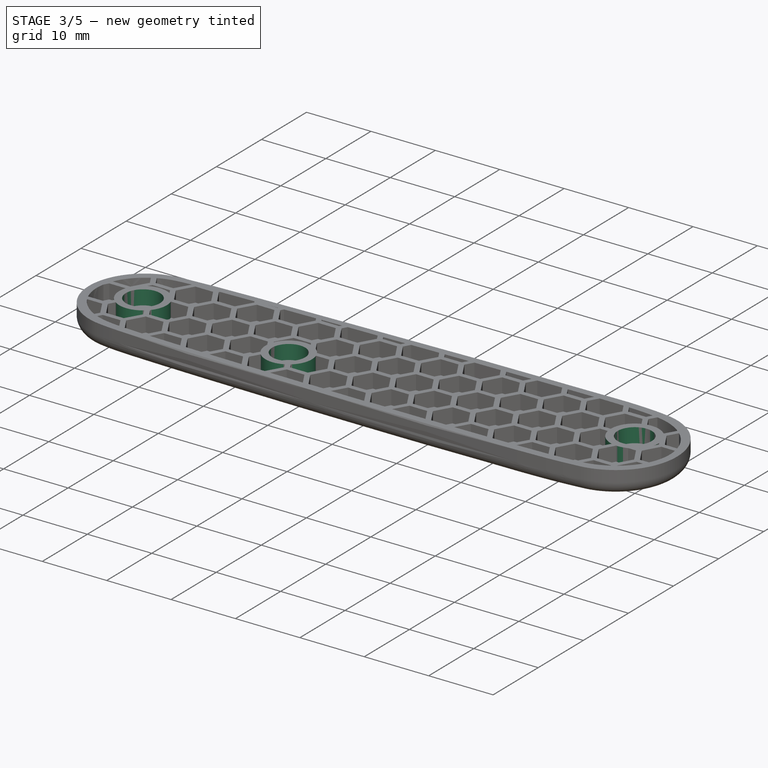
[diagram: stage 3 of 5 — iso view after this stage's code; geometry added in this stage tinted green]
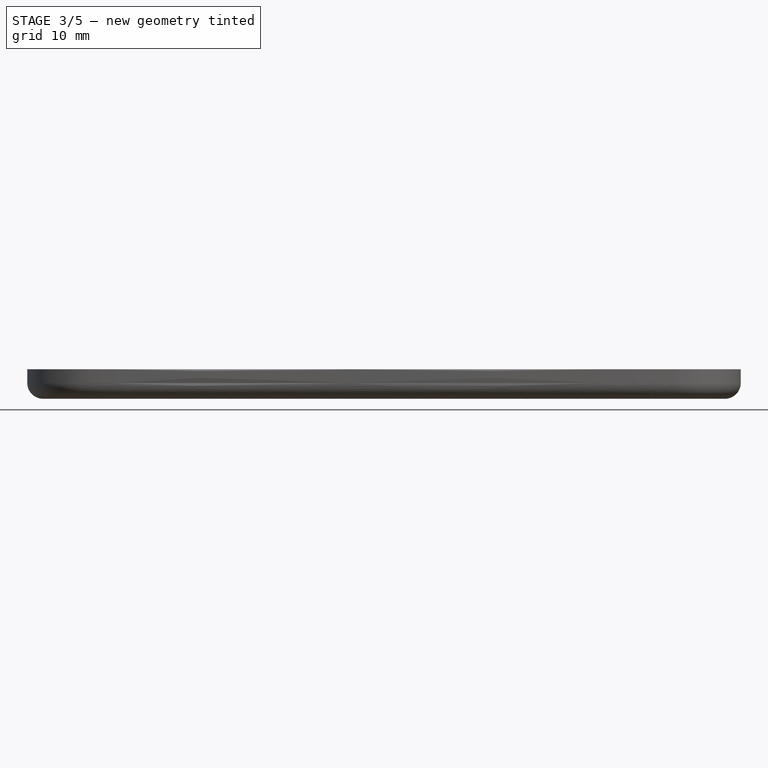
[diagram: stage 3 of 5 — front view after this stage's code; geometry added in this stage tinted green]
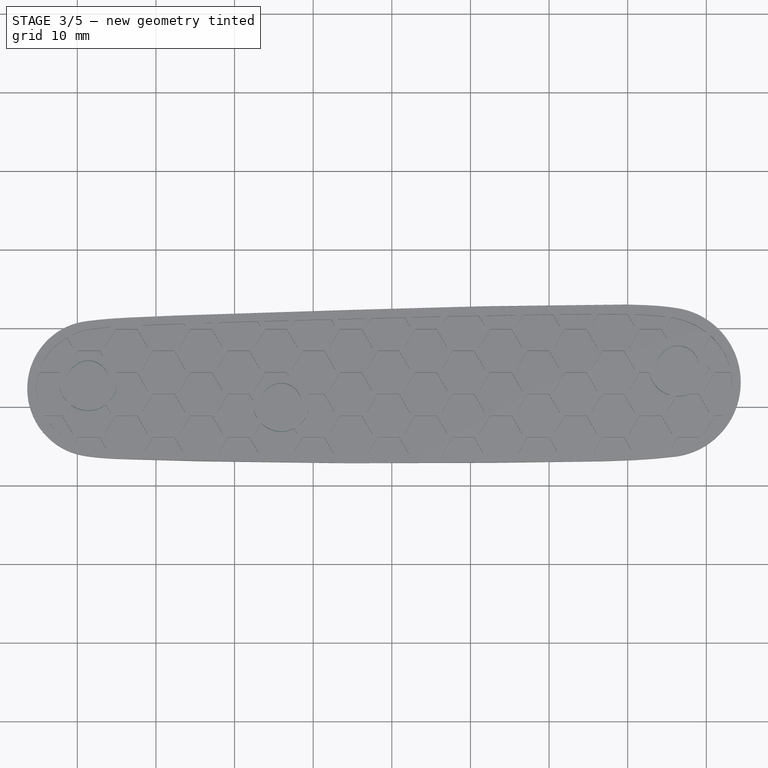
[diagram: stage 3 of 5 — top view after this stage's code; geometry added in this stage tinted green]
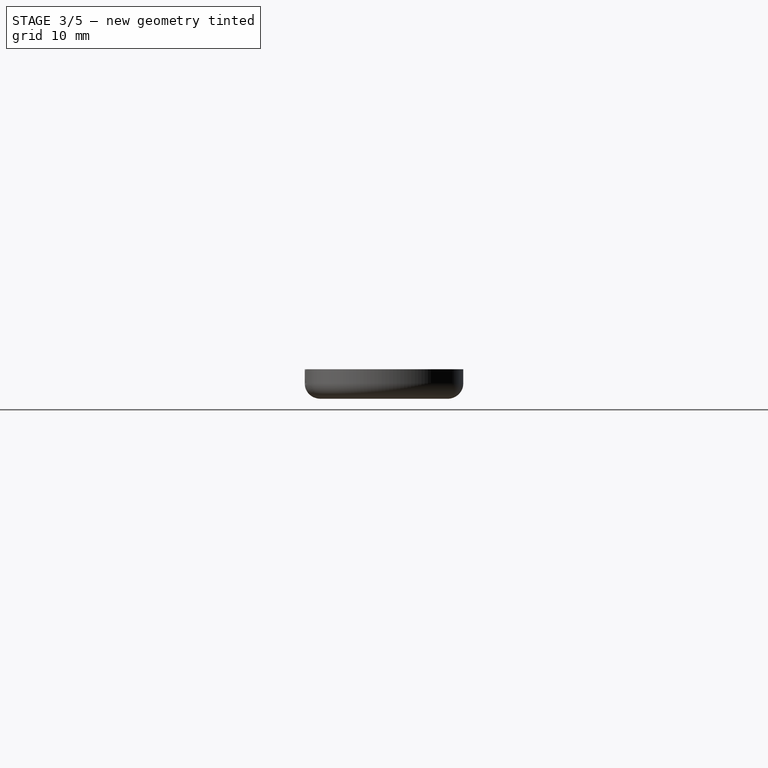
[diagram: stage 3 of 5 — right view after this stage's code; geometry added in this stage tinted green]
FEATURE [Sketcher::SketchObject] Sketch015  label="mounting_holes_s3"
  FullyConstrained = false
  MapMode = 5
  Support = -> [XY_Plane022]
  sketch-geometry (3):
    g0: Circle CenterX=-38.6185 CenterY=-6.78904 CenterZ=0 NormalX=0 NormalY=0 NormalZ=1 AngleXU=0 Radius=2.65
    g1: Circle CenterX=-14.0609 CenterY=-9.54984 CenterZ=0 NormalX=0 NormalY=0 NormalZ=1 AngleXU=0 Radius=2.55
    g2: Circle CenterX=36.4096 CenterY=-4.90027 CenterZ=0 NormalX=0 NormalY=0 NormalZ=1 AngleXU=0 Radius=2.65
  constraints (3):
    c: Radius(g0) = 2.65
    c: Radius(g1) = 2.55
    c: Radius(g2) = 2.65
FEATURE [Sketcher::SketchObject] Sketch016
  FullyConstrained = false
  MapMode = 5
  Support = -> [XY_Plane023]
  sketch-geometry (3):
    g0: Circle CenterX=-4.8728 CenterY=-13.7121 CenterZ=0 NormalX=0 NormalY=0 NormalZ=1 AngleXU=0 Radius=1.6
    g1: LineSegment StartX=-14.1147 StartY=-9.5161 StartZ=0 EndX=-4.86473 EndY=-9.5161 EndZ=0
    g2: LineSegment StartX=-4.86473 StartY=-9.5161 StartZ=0 EndX=-4.86473 EndY=-13.7161 EndZ=0
  constraints (6):
    c: Radius(g0) = 1.6
    c: Horizontal(g1)
    c: Distance(g1) = 9.25
    c: Coincident(g2,g1)
    c: Vertical(g2)
    c: Distance(g2) = 4.2
FEATURE [PartDesign::Body] Body005  label="nipple"
  Group = -> [Sketch016]
  Origin = -> Origin022
FEATURE [Part::Cut] Cut
  Base = -> Body003
  Tool = -> Body002
FEATURE [PartDesign::Body] Body  label="scale"
  Group = -> [Sketch,Pad,Sketch009,Pocket,Fillet]
  Origin = -> Origin002
  Tip = -> Fillet
FEATURE [Part::MultiFuse] Fusion
  Shapes = -> [Cut,Body]
FEATURE [Sketcher::SketchObject] Sketch014  label="mounting_holes_s2"
  FullyConstrained = false
  MapMode = 5
  Placement = pos=(0,0,-2.25) rot=(0,0,1;0rad)
  Support = -> [Fusion]
  sketch-geometry (3):
    g0: Circle CenterX=36.4096 CenterY=-4.90027 CenterZ=0 NormalX=0 NormalY=0 NormalZ=1 AngleXU=0 Radius=3.75
    g1: Circle CenterX=-14.0609 CenterY=-9.54984 CenterZ=0 NormalX=0 NormalY=0 NormalZ=1 AngleXU=0 Radius=3.6
    g2: Circle CenterX=-38.6185 CenterY=-6.78904 CenterZ=0 NormalX=0 NormalY=0 NormalZ=1 AngleXU=0 Radius=3.7
  constraints (3):
    c: Radius(g0) = 3.75
    c: Radius(g1) = 3.6
    c: Radius(g2) = 3.7
FEATURE [PartDesign::Pad] Pad003  label="mounting_holes_outer"
  Direction = (1,1,1)
  Length = 2.25
  Length2 = 100
  Profile = -> Sketch014
  Type = 0
FEATURE [PartDesign::Pocket] Pocket001  label="mountin_holes"
  BaseFeature = -> Pad003
  Length = 2.25
  Length2 = 100
  Profile = -> Sketch015
  Type = 0
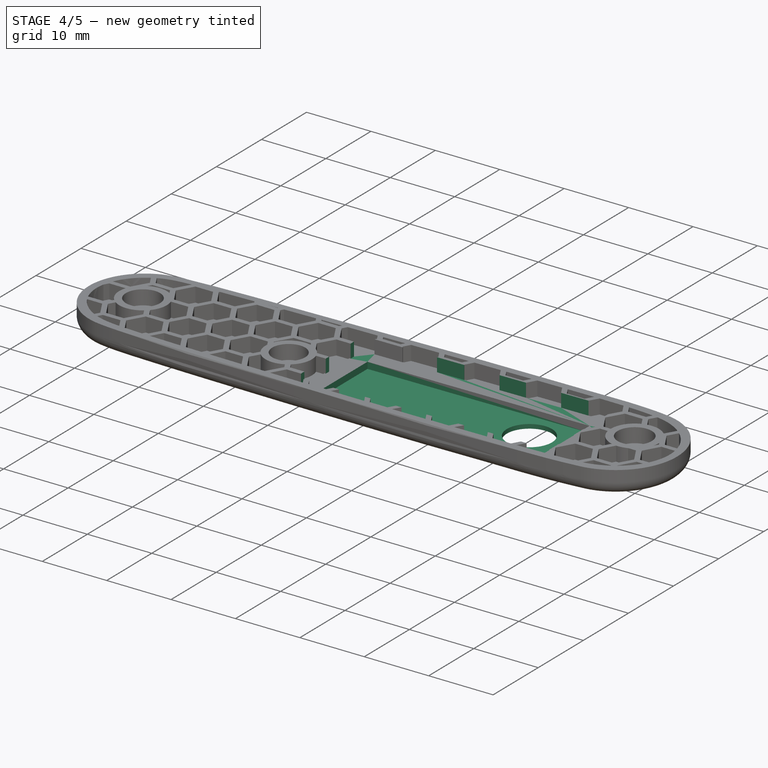
[diagram: stage 4 of 5 — iso view after this stage's code; geometry added in this stage tinted green]
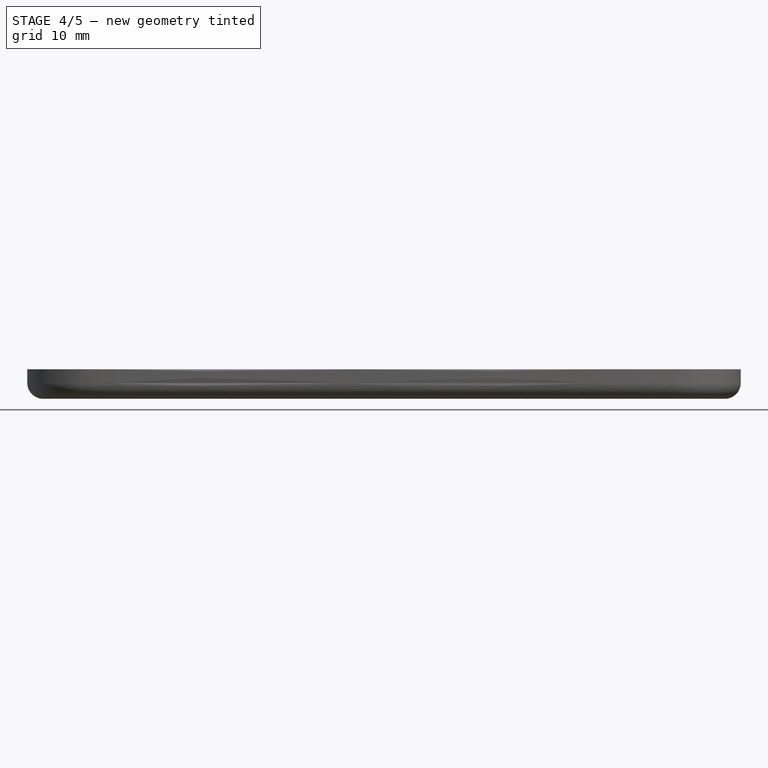
[diagram: stage 4 of 5 — front view after this stage's code; geometry added in this stage tinted green]
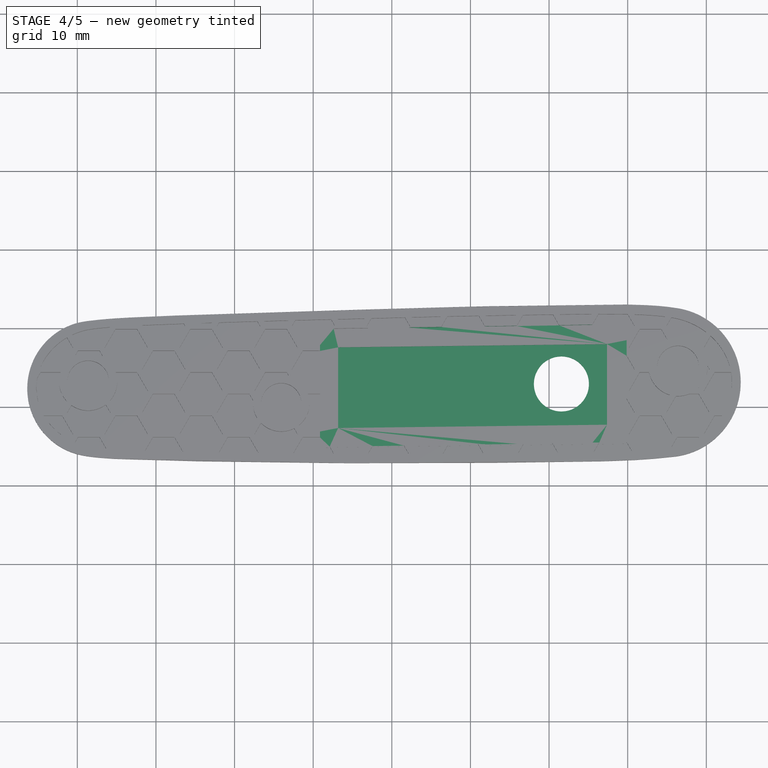
[diagram: stage 4 of 5 — top view after this stage's code; geometry added in this stage tinted green]
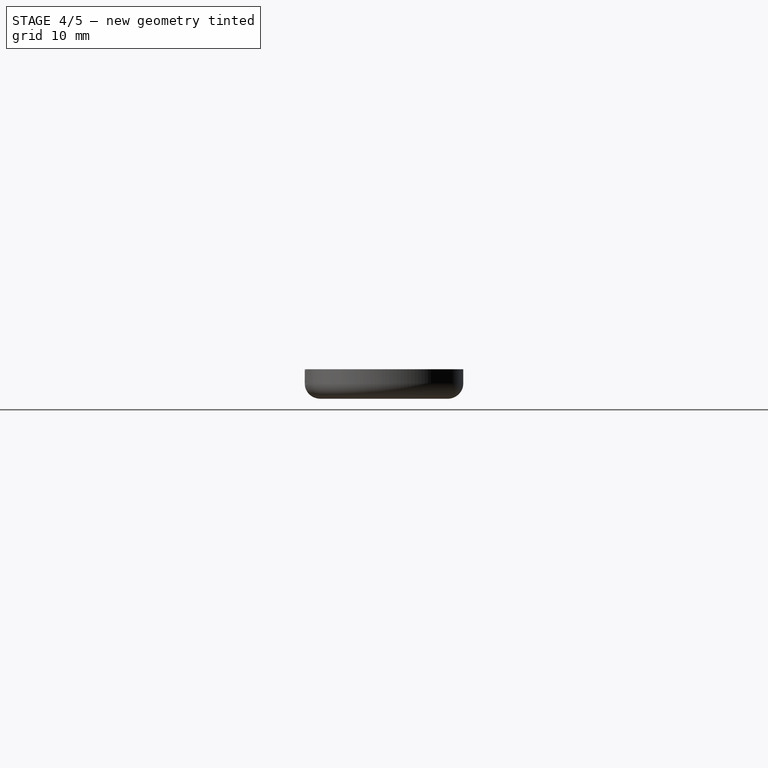
[diagram: stage 4 of 5 — right view after this stage's code; geometry added in this stage tinted green]
FEATURE [Sketcher::SketchObject] Sketch017
  FullyConstrained = true
  MapMode = 5
  Support = -> [XY_Plane022]
  sketch-geometry (4):
    g0: LineSegment StartX=-9.13 StartY=-0.08 StartZ=0 EndX=29.8657 EndY=0.5 EndZ=0
    g1: LineSegment StartX=29.8657 StartY=0.5 StartZ=0 EndX=29.8657 EndY=-14.5 EndZ=0
    g2: LineSegment StartX=29.8657 StartY=-14.5 StartZ=0 EndX=-9.13 EndY=-15.08 EndZ=0
    g3: LineSegment StartX=-9.13 StartY=-15.08 StartZ=0 EndX=-9.13 EndY=-0.08 EndZ=0
  constraints (12):
    c: Coincident(g0,g1)
    c: Vertical(g1)
    c: Coincident(g1,g2)
    c: Coincident(g2,g3)
    c: Coincident(g3,g0)
    c: Vertical(g3)
    c: Distance(g2) = 39
    c: Parallel(g2,g0)
    c: DistanceX(g0,g-1) = 9.13
    c: DistanceY(g-1,g0) = 0.5
    c: Distance(g3) = 15
    c: DistanceY(g0,g-1) = 0.08
FEATURE [PartDesign::Pocket] Pocket002  label="PCB_cutout"
  BaseFeature = -> Pocket001
  Length = 3.1
  Length2 = 100
  Profile = -> Sketch017
  Type = 0
FEATURE [Sketcher::SketchObject] Sketch018
  FullyConstrained = true
  MapMode = 5
  Placement = pos=(0,0,-2.25) rot=(0,0,1;0rad)
  sketch-geometry (1):
    g0: Circle CenterX=21.57 CenterY=-7.06 CenterZ=0 NormalX=0 NormalY=0 NormalZ=1 AngleXU=0 Radius=3.5
  constraints (3):
    c: Radius(g0) = 3.5
    c: DistanceY(g0,g-1) = 7.06
    c: DistanceX(g-1,g0) = 21.57
FEATURE [PartDesign::Pocket] Pocket003  label="thermometer_window"
  BaseFeature = -> Pocket002
  Length = 5
  Length2 = 100
  Profile = -> Sketch018
  Type = 1
FEATURE [Part::Feature] Part__Feature015  label="C_0603_1608Metric012"
  shape: bbox 1.6 x 0.8 x 0.8 mm, 28 faces (baked)
FEATURE [App::Part] C_0603_1608Metric006  label="C_0603_1608Metric013"
  Group = -> [Part__Feature015]
  Origin = -> Origin023
  Placement = pos=(2.5,-4.7,0.836) rot=(0,0,1;0rad)
FEATURE [Part::Feature] Part__Feature016  label="C_0603_1608Metric014"
  shape: bbox 1.6 x 0.8 x 0.8 mm, 28 faces (baked)
FEATURE [App::Part] C_0603_1608Metric007  label="C_0603_1608Metric015"
  Group = -> [Part__Feature016]
  Origin = -> Origin024
  Placement = pos=(-2,-9.025,0.836) rot=(0,0,1;0rad)
FEATURE [Part::Feature] Part__Feature017  label="C_0603_1608Metric016"
  shape: bbox 1.6 x 0.8 x 0.8 mm, 28 faces (baked)
FEATURE [App::Part] C_0603_1608Metric008  label="C_0603_1608Metric017"
  Group = -> [Part__Feature017]
  Origin = -> Origin025
  Placement = pos=(-2,-7.4,0.836) rot=(0,0,1;0rad)
FEATURE [Part::Feature] Part__Feature018  label="C_0603_1608Metric018"
  shape: bbox 1.6 x 0.8 x 0.8 mm, 28 faces (baked)
FEATURE [App::Part] C_0603_1608Metric009  label="C_0603_1608Metric019"
  Group = -> [Part__Feature018]
  Origin = -> Origin026
  Placement = pos=(-2,-5.8,0.836) rot=(0,0,1;0rad)
FEATURE [Part::Feature] Part__Feature019  label="QFN-16-1EP_3x3mm_P0.5mm_EP1.7x1.7mm002"
  shape: bbox 3 x 3 x 0.785 mm, 110 faces (baked)
FEATURE [App::Part] QFN_16_1EP_3x3mm_P0_5mm_EP1_7x1_7mm001  label="QFN-16-1EP_3x3mm_P0.5mm_EP1.7x1.7mm003"
  Group = -> [Part__Feature019]
  Origin = -> Origin027
  Placement = pos=(1.58934,-8.50708,0.836) rot=(0,0,1;1.5708rad)
FEATURE [Part::Feature] Part__Feature020  label="WSON_6_1EP_2x2mm_P065mm_EP1x16mm001"
  shape: bbox 2 x 1.98 x 0.82 mm, 50 faces (baked)
FEATURE [App::Part] WSON_6_1EP_2x2mm_P0_65mm_EP1x1_6mm001  label="WSON-6-1EP_2x2mm_P0.65mm_EP1x1.6mm001"
  Group = -> [Part__Feature020]
  Origin = -> Origin028
  Placement = pos=(0,11.85,0.836) rot=(0,0,-1;1.5708rad)
FEATURE [Part::Feature] Part__Feature021  label="C_0603_1608Metric020"
  shape: bbox 1.6 x 0.8 x 0.8 mm, 28 faces (baked)
FEATURE [App::Part] C_0603_1608Metric010  label="C_0603_1608Metric021"
  Group = -> [Part__Feature021]
  Origin = -> Origin029
  Placement = pos=(-2,-10.6,0.836) rot=(0,0,1;0rad)
FEATURE [Part::Feature] Part__Feature022  label="QFN-24_3x3mm_Pitch0.4mm001"
  shape: bbox 3 x 3 x 1.02 mm, 152 faces (baked)
FEATURE [App::Part] QFN_24_3x3mm_P0_4mm001  label="QFN-24_3x3mm_P0.4mm001"
  Group = -> [Part__Feature022]
  Origin = -> Origin030
  Placement = pos=(-1.4,-0.15,0.836) rot=(0,0,1;0rad)
FEATURE [Part::Feature] Part__Feature023  label="C_0603_1608Metric022"
  shape: bbox 1.6 x 0.8 x 0.8 mm, 28 faces (baked)
FEATURE [App::Part] C_0603_1608Metric011  label="C_0603_1608Metric023"
  Group = -> [Part__Feature023]
  Origin = -> Origin031
  Placement = pos=(-2.025,-4.2,0.836) rot=(0,0,1;0rad)
FEATURE [Part::Feature] Part__Feature024  label="D_0605"
  shape: bbox 1.6 x 0.87 x 0.66 mm, 39 faces (baked)
FEATURE [App::Part] D_0603_1608Metric002
  Group = -> [Part__Feature024]
  Origin = -> Origin032
  Placement = pos=(0.8,-13.075,0.836) rot=(0,0,-1;1.5708rad)
FEATURE [Part::Feature] Part__Feature025  label="R_0603_1608Metric004"
  shape: bbox 1.6 x 0.8 x 0.45 mm, 26 faces (baked)
FEATURE [App::Part] R_0603_1608Metric002  label="R_0603_1608Metric005"
  Group = -> [Part__Feature025]
  Origin = -> Origin033
  Placement = pos=(2.6,1.6,0.836) rot=(0,0,1;0rad)
FEATURE [Part::Feature] Part__Feature026  label="C_0402_1005Metric002"
  shape: bbox 1 x 0.5 x 0.5 mm, 28 faces (baked)
FEATURE [App::Part] C_0402_1005Metric001  label="C_0402_1005Metric003"
  Group = -> [Part__Feature026]
  Origin = -> Origin034
  Placement = pos=(0,9.95,0.836) rot=(0,0,1;3.14159rad)
FEATURE [Part::Feature] Part__Feature027  label="R_0603_1608Metric006"
  shape: bbox 1.6 x 0.8 x 0.45 mm, 26 faces (baked)
FEATURE [App::Part] R_0603_1608Metric003  label="R_0603_1608Metric007"
  Group = -> [Part__Feature027]
  Origin = -> Origin035
  Placement = pos=(2.6,-1,0.836) rot=(0,0,1;0rad)
FEATURE [Part::Feature] Part__Feature028  label="D_0606"
  shape: bbox 1.6 x 0.87 x 0.66 mm, 39 faces (baked)
FEATURE [App::Part] D_0603_1608Metric003
  Group = -> [Part__Feature028]
  Origin = -> Origin036
  Placement = pos=(-0.8,-13.075,0.836) rot=(0,0,-1;1.5708rad)
FEATURE [Part::Feature] Part__Feature029  label="victorinox_sense_PCB001"
  shape: bbox 14.8 x 38.8 x 0.786 mm, 21 faces (baked)
FEATURE [App::Part] nfc_sense_1001  label="nfc_sense 001"
  Group = -> [C_0603_1608Metric006,C_0603_1608Metric007,C_0603_1608Metric008,C_0603_1608Metric009,QFN_16_1EP_3x3mm_P0_5mm_EP1_7x1_7mm001,WSON_6_1EP_2x2mm_P0_65mm_EP1x1_6mm001,C_0603_1608Metric010,QFN_24_3x3mm_P0_4mm001,C_0603_1608Metric011,D_0603_1608Metric002,R_0603_1608Metric002,C_0402_1005Metric001,R_0603_1608Metric003,D_0603_1608Metric003,Part__Feature029]
  Origin = -> Origin037
  Placement = pos=(10.1,-7.3,-0.8) rot=(-0.702464,-0.71172,0;3.14159rad)
FEATURE [Sketcher::SketchObject] Sketch019
  FullyConstrained = true
  MapMode = 5
  Placement = pos=(0,0,-3.1) rot=(0,0,1;0rad)
  Support = -> [Pocket003]
  sketch-geometry (8):
    g0: LineSegment StartX=-9.33 StartY=0.02 StartZ=0 EndX=29.8671 EndY=0.5 EndZ=0
    g1: LineSegment StartX=29.8671 StartY=0.5 StartZ=0 EndX=29.8671 EndY=-14.7 EndZ=0
    g2: LineSegment StartX=29.8671 StartY=-14.7 StartZ=0 EndX=-9.33 EndY=-15.18 EndZ=0
    g3: LineSegment StartX=-9.33 StartY=-15.18 StartZ=0 EndX=-9.33 EndY=0.02 EndZ=0
    g4: LineSegment StartX=-6.83 StartY=-2.41877 StartZ=0 EndX=27.3671 EndY=-2 EndZ=0
    g5: LineSegment StartX=27.3671 StartY=-2 StartZ=0 EndX=27.3671 EndY=-12.2612 EndZ=0
    g6: LineSegment StartX=27.3671 StartY=-12.2612 StartZ=0 EndX=-6.83 EndY=-12.68 EndZ=0
    g7: LineSegment StartX=-6.83 StartY=-12.68 StartZ=0 EndX=-6.83 EndY=-2.41877 EndZ=0
  constraints (24):
    c: Coincident(g0,g1)
    c: Vertical(g1)
    c: Coincident(g1,g2)
    c: Coincident(g2,g3)
    c: Coincident(g3,g0)
    c: Vertical(g3)
    c: Distance(g2) = 39.2
    c: Parallel(g2,g0)
    c: DistanceX(g0,g-1) = 9.33
    c: DistanceY(g-1,g0) = 0.5
    c: Distance(g3) = 15.2
    c: DistanceY(g-1,g0) = 0.02
    c: Coincident(g4,g5)
    c: Coincident(g5,g6)
    c: Coincident(g6,g7)
    c: Coincident(g7,g4)
    c: Vertical(g5)
    c: Vertical(g7)
    c: Parallel(g4,g0)
    c: Parallel(g6,g2)
    c: DistanceX(g2,g6) = 2.5
    c: DistanceY(g2,g6) = 2.5
    c: DistanceX(g4,g0) = 2.5
    c: DistanceY(g4,g0) = 2.5
FEATURE [PartDesign::Pad] Pad004  label="PCB_cutout001"
  BaseFeature = -> Pocket003
  Direction = (1,1,1)
  Length = 1
  Length2 = 100
  Profile = -> Sketch019
  Type = 0
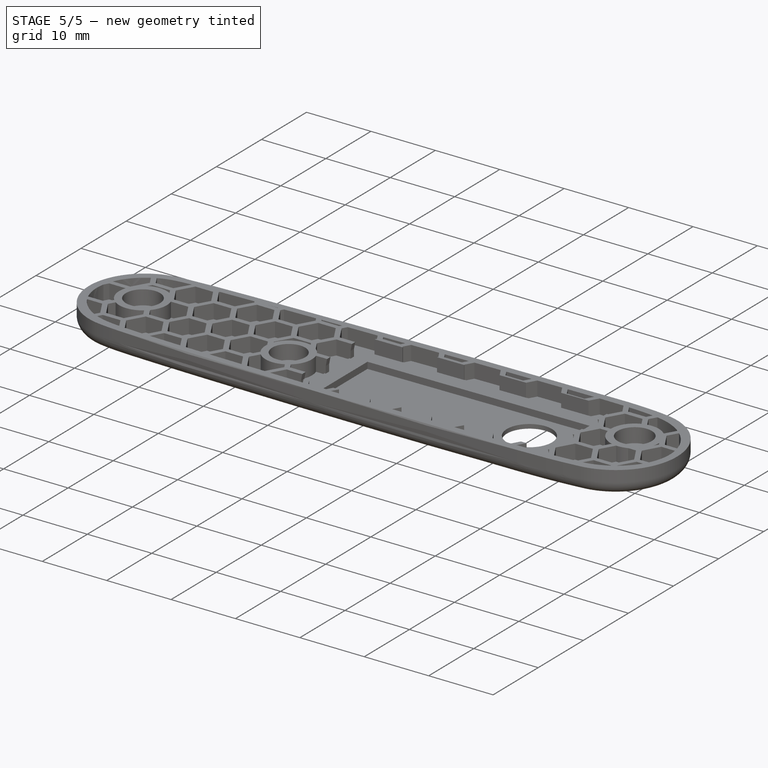
[diagram: stage 5 of 5 — iso view after this stage's code; geometry added in this stage tinted green]
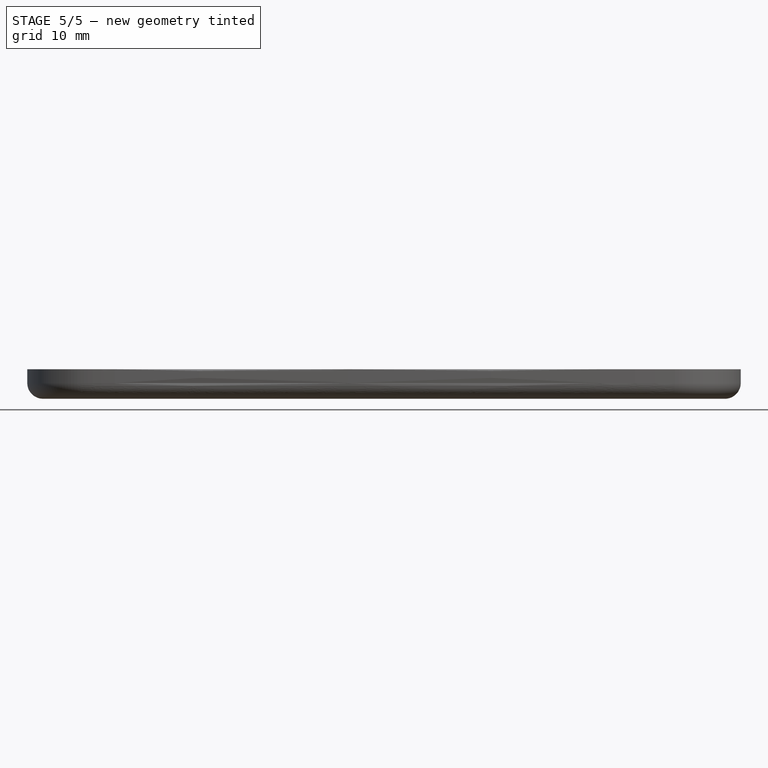
[diagram: stage 5 of 5 — front view after this stage's code; geometry added in this stage tinted green]
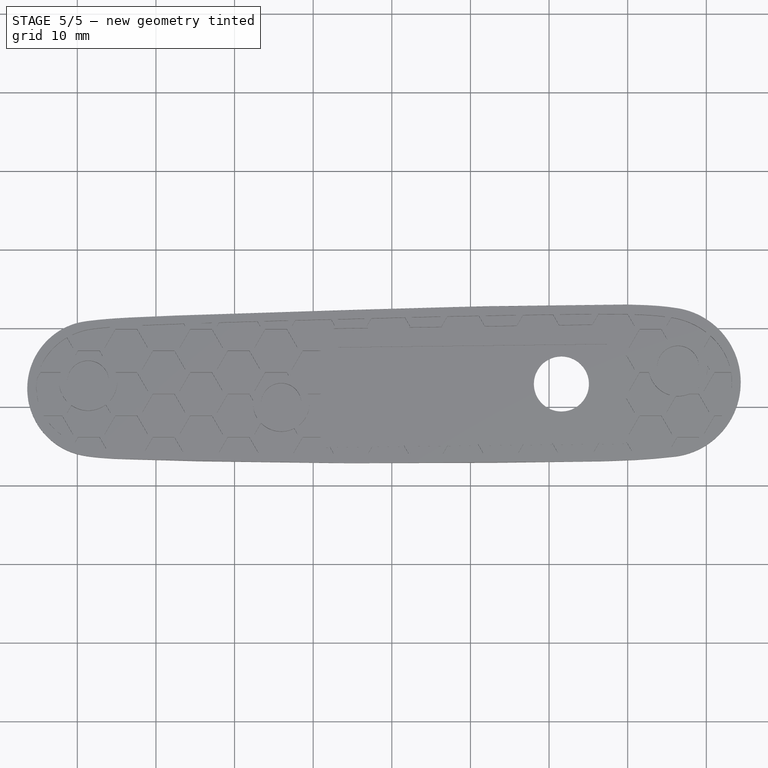
[diagram: stage 5 of 5 — top view after this stage's code; geometry added in this stage tinted green]
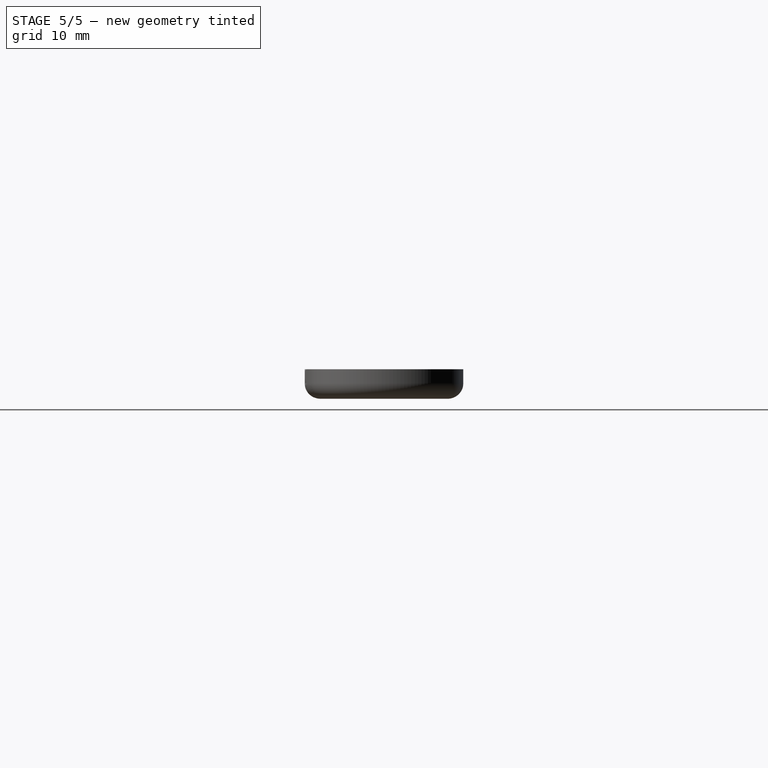
[diagram: stage 5 of 5 — right view after this stage's code; geometry added in this stage tinted green]
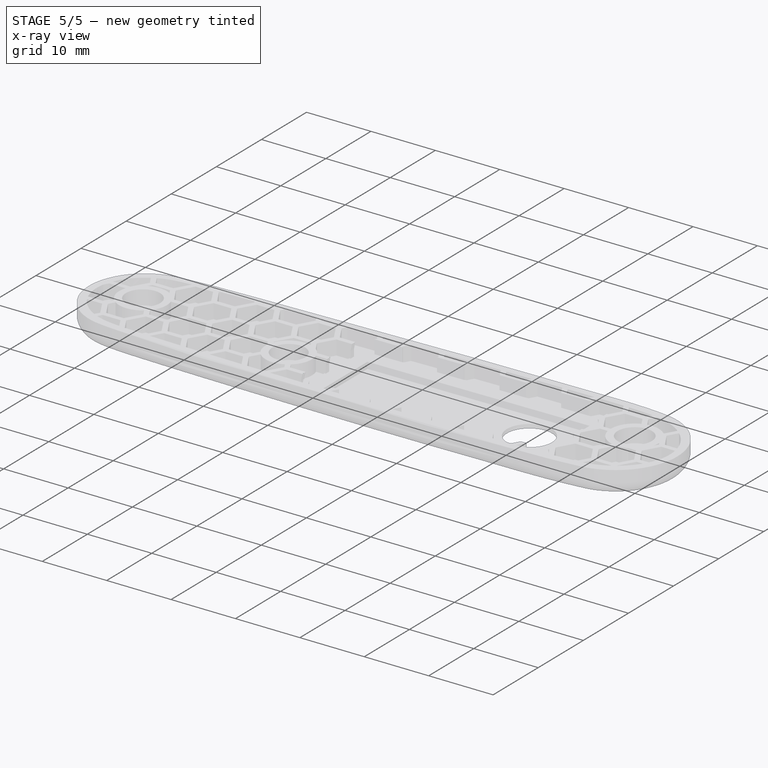
[diagram: stage 5 of 5 — x-ray composite at the iso view; earlier geometry ghosted, this stage's added geometry solid]
FEATURE [Sketcher::SketchObject] Sketch020
  FullyConstrained = false
  MapMode = 5
  Placement = pos=(-9.13,0,0) rot=(0.57735,0.57735,0.57735;2.0944rad)
  Support = -> [Pad004]
  sketch-geometry (12):
    g0: LineSegment StartX=-8.37498 StartY=0 StartZ=0 EndX=-7.62498 EndY=0 EndZ=0
    g1: LineSegment StartX=-7.62498 StartY=0 StartZ=0 EndX=-7.62498 EndY=-1 EndZ=0
    g2: LineSegment StartX=-7.62498 StartY=-1 StartZ=0 EndX=-8.37498 EndY=-1 EndZ=0
    g3: LineSegment StartX=-8.37498 StartY=-1 StartZ=0 EndX=-8.37498 EndY=0 EndZ=0
    g4: LineSegment StartX=-13.875 StartY=0 StartZ=0 EndX=-13.125 EndY=0 EndZ=0
    g5: LineSegment StartX=-13.125 StartY=0 StartZ=0 EndX=-13.125 EndY=-1 EndZ=0
    g6: LineSegment StartX=-13.125 StartY=-1 StartZ=0 EndX=-13.875 EndY=-1 EndZ=0
    g7: LineSegment StartX=-13.875 StartY=-1 StartZ=0 EndX=-13.875 EndY=0 EndZ=0
    g8: LineSegment StartX=-2.87498 StartY=0 StartZ=0 EndX=-2.12498 EndY=0 EndZ=0
    g9: LineSegment StartX=-2.12498 StartY=0 StartZ=0 EndX=-2.12498 EndY=-1 EndZ=0
    g10: LineSegment StartX=-2.12498 StartY=-1 StartZ=0 EndX=-2.87498 EndY=-1 EndZ=0
    g11: LineSegment StartX=-2.87498 StartY=-1 StartZ=0 EndX=-2.87498 EndY=0 EndZ=0
  constraints (35):
    c: Coincident(g0,g1)
    c: Coincident(g1,g2)
    c: Coincident(g2,g3)
    c: Coincident(g3,g0)
    c: Horizontal(g0)
    c: Horizontal(g2)
    c: Vertical(g1)
    c: Vertical(g3)
    c: PointOnObject(g0,g-1)
    c: Distance(g1) = 1
    c: Distance(g0) = 0.75
    c: Coincident(g4,g5)
    c: Coincident(g5,g6)
    c: Coincident(g6,g7)
    c: Coincident(g7,g4)
    c: Horizontal(g4)
    c: Horizontal(g6)
    c: Vertical(g5)
    c: Vertical(g7)
    c: Equal(g1,g5) = 0.3
    c: Equal(g0,g4) = 0.75
    c: Horizontal(g4,g0)
    c: DistanceX(g4,g0) = 4.75
    c: Coincident(g8,g9)
    c: Coincident(g9,g10)
    c: Coincident(g10,g11)
    c: Coincident(g11,g8)
    c: Horizontal(g8)
    c: Horizontal(g10)
    c: Vertical(g9)
    c: Vertical(g11)
    c: Equal(g1,g9) = 0.3
    c: Equal(g0,g8) = 0.75
    c: Horizontal(g8,g0)
    c: DistanceX(g0,g8) = 4.75
FEATURE [PartDesign::Pad] Pad005  label="hooks_1"
  BaseFeature = -> Pad004
  Direction = (1,1,1)
  Length = 0.2
  Length2 = 100
  Profile = -> Sketch020
  Type = 0
FEATURE [Sketcher::SketchObject] Sketch021
  FullyConstrained = true
  MapMode = 5
  Placement = pos=(29.8657,0,0) rot=(0.57735,-0.57735,-0.57735;2.0944rad)
  sketch-geometry (12):
    g0: LineSegment StartX=1.507 StartY=0 StartZ=0 EndX=3.494 EndY=0 EndZ=0
    g1: LineSegment StartX=3.494 StartY=0 StartZ=0 EndX=3.494 EndY=-1 EndZ=0
    g2: LineSegment StartX=3.494 StartY=-1 StartZ=0 EndX=1.507 EndY=-1 EndZ=0
    g3: LineSegment StartX=1.507 StartY=-1 StartZ=0 EndX=1.507 EndY=0 EndZ=0
    g4: LineSegment StartX=7.007 StartY=1e-16 StartZ=0 EndX=8.994 EndY=1e-16 EndZ=0
    g5: LineSegment StartX=8.994 StartY=1e-16 StartZ=0 EndX=8.994 EndY=-1 EndZ=0
    g6: LineSegment StartX=8.994 StartY=-1 StartZ=0 EndX=7.007 EndY=-1 EndZ=0
    g7: LineSegment StartX=7.007 StartY=-1 StartZ=0 EndX=7.007 EndY=1e-16 EndZ=0
    g8: LineSegment StartX=12.507 StartY=0 StartZ=0 EndX=14.494 EndY=0 EndZ=0
    g9: LineSegment StartX=14.494 StartY=0 StartZ=0 EndX=14.494 EndY=-1 EndZ=0
    g10: LineSegment StartX=14.494 StartY=-1 StartZ=0 EndX=12.507 EndY=-1 EndZ=0
    g11: LineSegment StartX=12.507 StartY=-1 StartZ=0 EndX=12.507 EndY=0 EndZ=0
  constraints (36):
    c: Coincident(g0,g1)
    c: Coincident(g1,g2)
    c: Coincident(g2,g3)
    c: Coincident(g3,g0)
    c: Horizontal(g0)
    c: Horizontal(g2)
    c: Vertical(g1)
    c: Vertical(g3)
    c: PointOnObject(g0,g-1)
    c: Distance(g1) = 1
    c: Distance(g2) = 1.987
    c: Coincident(g4,g5)
    c: Coincident(g5,g6)
    c: Coincident(g6,g7)
    c: Coincident(g7,g4)
    c: Horizontal(g4)
    c: Horizontal(g6)
    c: Vertical(g5)
    c: Vertical(g7)
    c: Equal(g1,g5) = 0.7
    c: Equal(g2,g6) = 1.99
    c: Horizontal(g1,g6)
    c: Coincident(g8,g9)
    c: Coincident(g9,g10)
    c: Coincident(g10,g11)
    c: Coincident(g11,g8)
    c: Horizontal(g8)
    c: Horizontal(g10)
    c: Vertical(g9)
    c: Vertical(g11)
    c: Equal(g1,g9) = 0.7
    c: Equal(g2,g10) = 1.99
    c: Horizontal(g10,g5)
    c: DistanceX(g0,g4) = 3.513
    c: DistanceX(g4,g8) = 3.513
    c: DistanceX(g-1,g0) = 1.507
FEATURE [PartDesign::Pad] Pad006  label="hooks_2"
  BaseFeature = -> Pad005
  Direction = (1,1,1)
  Length = 0.2
  Length2 = 100
  Profile = -> Sketch021
  Type = 0
FEATURE [PartDesign::Chamfer] Chamfer
  Angle = 45
  Base = -> Pad006 [Edge1228,Edge1236,Edge1244,Edge1143,Edge1271,Edge1188]
  BaseFeature = -> Pad006
  ChamferType = 1
  FlipDirection = false
  Size = 0.19
  Size2 = 0.99
  SupportTransform = false
FEATURE [PartDesign::Body] Body004  label="main"
  Group = -> [Sketch002,Sketch014,Sketch015,Pad003,Pocket001,Sketch017,Pocket002,Sketch018,Pocket003,Sketch019,Pad004,Sketch020,Pad005,Sketch021,Pad006,Chamfer]
  Origin = -> Origin021
  Tip = -> Chamfer
FEATURE [App::Part] Part  label="pocket_knife_upper"
  Group = -> [Body,Body002,Body001,Body003,Body004,Body005,Cut]
  Origin = -> Origin
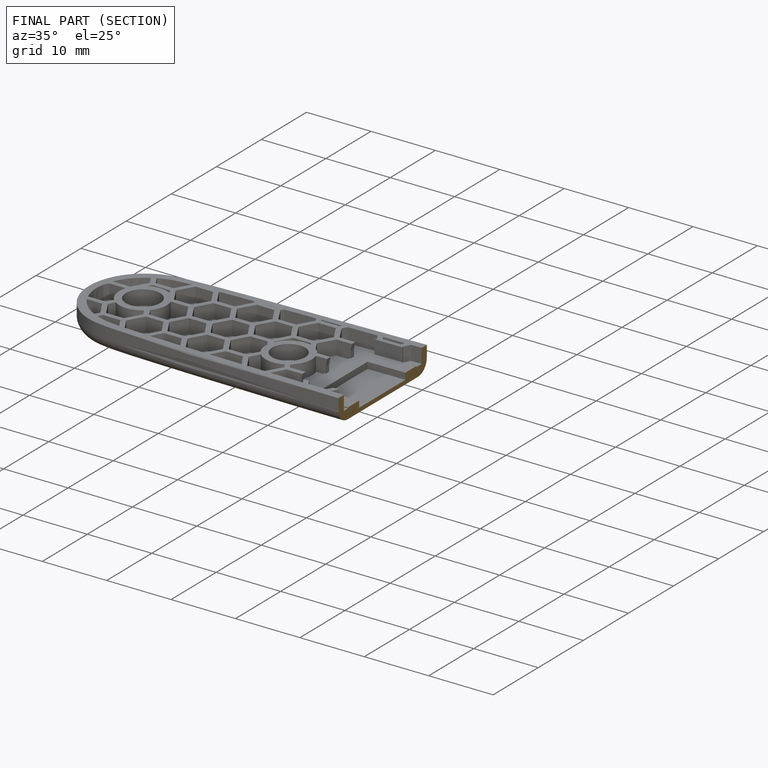
[diagram: finished part — half-section view (interior)]
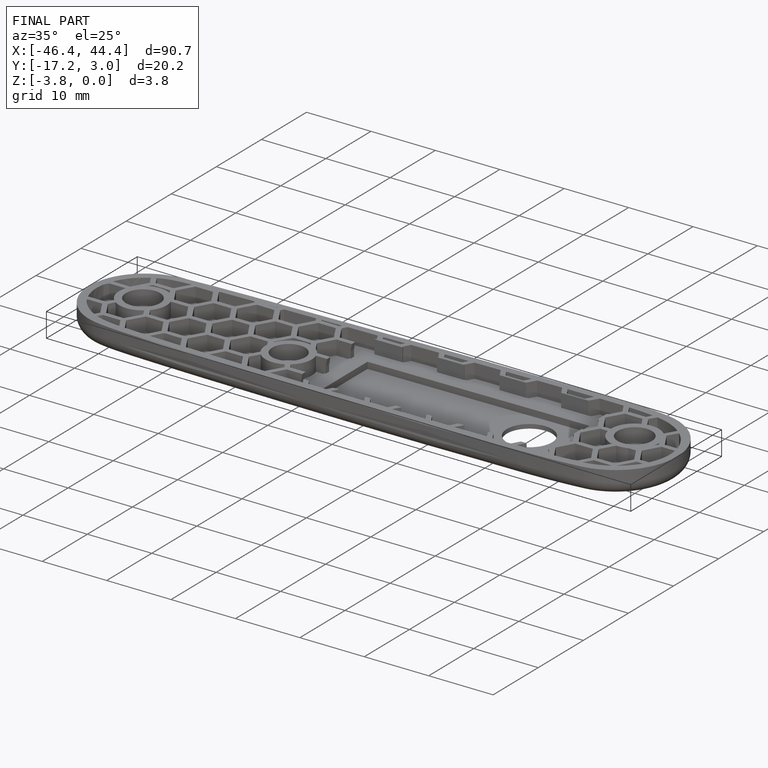
[diagram: finished part — iso view with bounding-box wireframe]
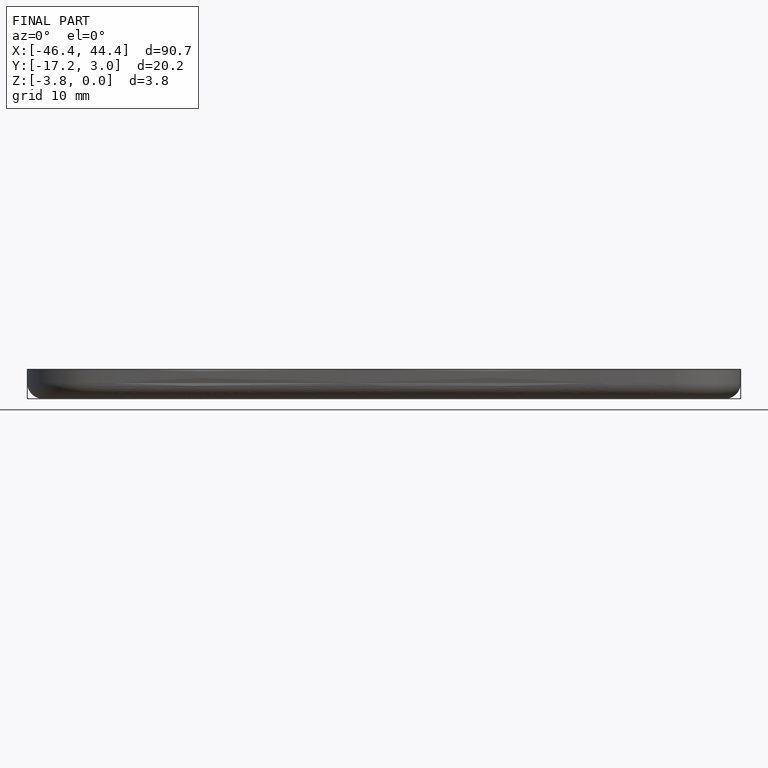
[diagram: finished part — front view with bounding-box wireframe]
